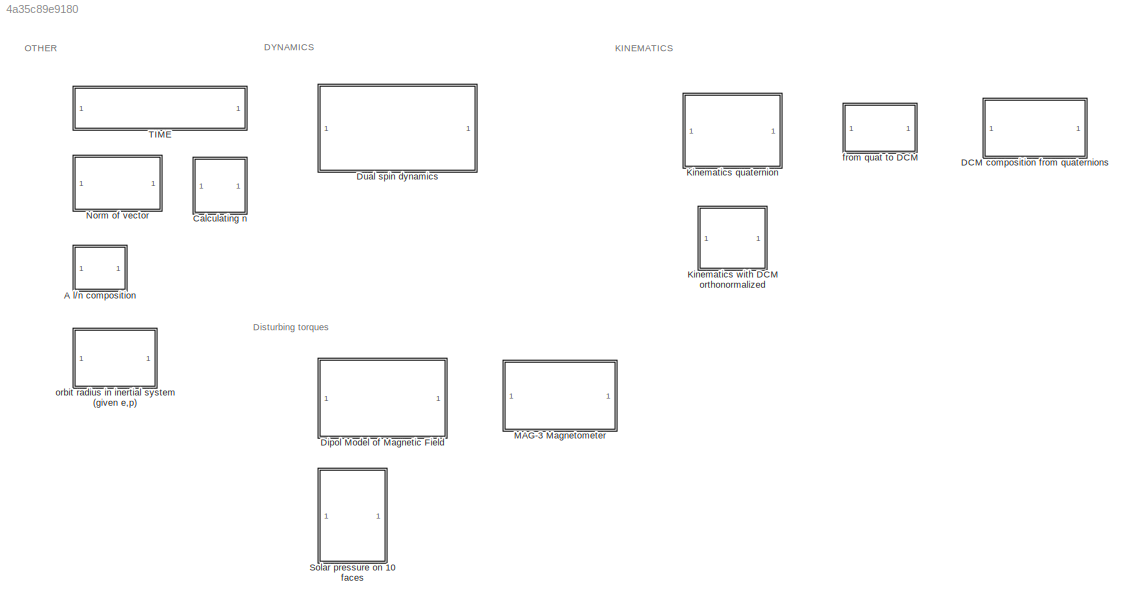
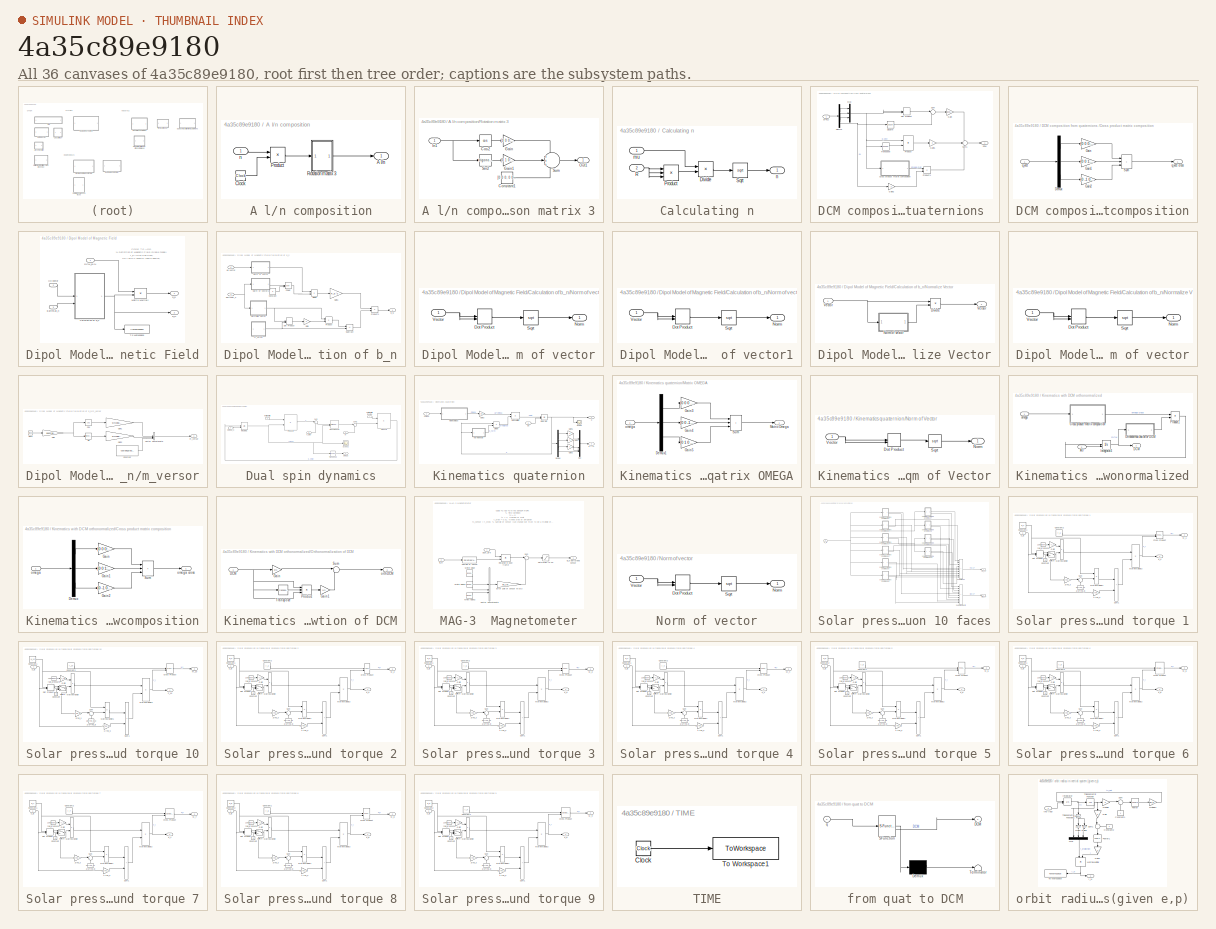
[diagram: thumbnail index - all 36 canvases of the model, root first then tree order]
MODEL slx_4a35c89e9180
KIND model
CONFIG AbsTol = auto
CONFIG EnableMultiTasking = off
CONFIG FixedStep = auto
CONFIG MaxStep = auto
CONFIG MinStep = auto
CONFIG RelTol = 1e-3
CONFIG SampleTimeConstraint = Unconstrained
CONFIG SolverName = VariableStepAuto
CONFIG StartTime = 0.0
CONFIG StopTime = 10.0
BLOCK [SubSystem] A l//n composition
  AncestorBlock = LibrarySAD5/A l//n composition
BLOCK [Outport] A l//n composition/A l//n
BLOCK [Clock] A l//n composition/Clock
BLOCK [Product] A l//n composition/Product
BLOCK [SubSystem] A l//n composition/Rotation matrix 3
BLOCK [Constant] A l//n composition/Rotation matrix 3/Constant1
  Value = [0 0 0; 0 0 0; 0 0 1]
BLOCK [Trigonometry] A l//n composition/Rotation matrix 3/Cos2
  Operator = cos
BLOCK [Gain] A l//n composition/Rotation matrix 3/Gain
  Gain = [1 0 0; 0 1 0; 0 0 0]
BLOCK [Gain] A l//n composition/Rotation matrix 3/Gain1
  Gain = [0 1 0; -1 0 0; 0 0 0]
BLOCK [Inport] A l//n composition/Rotation matrix 3/In1
BLOCK [Outport] A l//n composition/Rotation matrix 3/Out1
BLOCK [Trigonometry] A l//n composition/Rotation matrix 3/Sin2
BLOCK [Sum] A l//n composition/Rotation matrix 3/Sum
  Inputs = +++
BLOCK [Inport] A l//n composition/n
BLOCK [SubSystem] Calculating n
  AncestorBlock = LibrarySAD5/Calculating n
BLOCK [Product] Calculating n/Divide
  Inputs = */
BLOCK [Product] Calculating n/Product
  Inputs = 3
BLOCK [Inport] Calculating n/R
  Port = 2
BLOCK [Sqrt] Calculating n/Sqrt
BLOCK [Inport] Calculating n/mu
BLOCK [Outport] Calculating n/n
BLOCK [SubSystem] DCM composition from quaternions 
  AncestorBlock = LibrarySAD5/DCM composition from quaternions
BLOCK [SubSystem] DCM composition from quaternions /Cross product matrix composition
BLOCK [Demux] DCM composition from quaternions /Cross product matrix composition/Demux
  Outputs = 3
BLOCK [Gain] DCM composition from quaternions /Cross product matrix composition/Gain
  Gain = [0 0 0; 0 0 -1; 0 1 0]
BLOCK [Gain] DCM composition from quaternions /Cross product matrix composition/Gain1
  Gain = [0 0 1; 0 0 0; -1 0 0]
BLOCK [Gain] DCM composition from quaternions /Cross product matrix composition/Gain2
  Gain = [0 -1 0; 1 0 0; 0 0 0]
BLOCK [Sum] DCM composition from quaternions /Cross product matrix composition/Sum
  IconShape = rectangular
  Inputs = +++
BLOCK [Inport] DCM composition from quaternions /Cross product matrix composition/q_vect
BLOCK [Outport] DCM composition from quaternions /Cross product matrix composition/q_vect cross
BLOCK [Outport] DCM composition from quaternions /DCM
BLOCK [Demux] DCM composition from quaternions /Demux
BLOCK [DotProduct] DCM composition from quaternions /Dot Product
  OutDataTypeStr = Inherit: Inherit via internal rule
BLOCK [Gain] DCM composition from quaternions /Gain
  Gain = [1 0 0; 0 1 0; 0 0 1]
BLOCK [Gain] DCM composition from quaternions /Gain1
  Gain = 2
BLOCK [Gain] DCM composition from quaternions /Gain2
  Gain = -2
BLOCK [Mux] DCM composition from quaternions /Mux
  DisplayOption = bar
  Inputs = 3
BLOCK [Product] DCM composition from quaternions /Product
  Multiplication = Matrix(*)
BLOCK [Product] DCM composition from quaternions /Product1
BLOCK [Math] DCM composition from quaternions /Square
  Operator = square
BLOCK [Sum] DCM composition from quaternions /Sum
  Inputs = |-+
BLOCK [Sum] DCM composition from quaternions /Sum1
  Inputs = +++
BLOCK [Math] DCM composition from quaternions /Transpose
  Operator = transpose
BLOCK [Inport] DCM composition from quaternions /q(4x1)
BLOCK [SubSystem] Dipol Model of Magnetic Field
BLOCK [SubSystem] Dipol Model of Magnetic Field/Calculation of b_n
BLOCK [Constant] Dipol Model of Magnetic Field/Calculation of b_n/Constant
  Value = 3
BLOCK [Product] Dipol Model of Magnetic Field/Calculation of b_n/Divide
  Inputs = */
BLOCK [DotProduct] Dipol Model of Magnetic Field/Calculation of b_n/Dot Product
  OutDataTypeStr = Inherit: Inherit via internal rule
BLOCK [Inport] Dipol Model of Magnetic Field/Calculation of b_n/EarthSat_n
  Port = 2
BLOCK [Gain] Dipol Model of Magnetic Field/Calculation of b_n/Gain
  Gain = 3
BLOCK [Gain] Dipol Model of Magnetic Field/Calculation of b_n/Gain1
  Gain = R_E^3
BLOCK [Inport] Dipol Model of Magnetic Field/Calculation of b_n/H0 vector
BLOCK [SubSystem] Dipol Model of Magnetic Field/Calculation of b_n/Norm of vector
  AncestorBlock = LibrarySAD5/Normalize Vector1
BLOCK [DotProduct] Dipol Model of Magnetic Field/Calculation of b_n/Norm of vector/Dot Product
  OutDataTypeStr = Inherit: Inherit via internal rule
BLOCK [Outport] Dipol Model of Magnetic Field/Calculation of b_n/Norm of vector/Norm
BLOCK [Sqrt] Dipol Model of Magnetic Field/Calculation of b_n/Norm of vector/Sqrt
BLOCK [Inport] Dipol Model of Magnetic Field/Calculation of b_n/Norm of vector/Vector
BLOCK [SubSystem] Dipol Model of Magnetic Field/Calculation of b_n/Norm of vector1
  AncestorBlock = LibrarySAD5/Normalize Vector1
BLOCK [DotProduct] Dipol Model of Magnetic Field/Calculation of b_n/Norm of vector1/Dot Product
  OutDataTypeStr = Inherit: Inherit via internal rule
BLOCK [Outport] Dipol Model of Magnetic Field/Calculation of b_n/Norm of vector1/Norm
BLOCK [Sqrt] Dipol Model of Magnetic Field/Calculation of b_n/Norm of vector1/Sqrt
BLOCK [Inport] Dipol Model of Magnetic Field/Calculation of b_n/Norm of vector1/Vector
BLOCK [SubSystem] Dipol Model of Magnetic Field/Calculation of b_n/Normalize Vector
BLOCK [Product] Dipol Model of Magnetic Field/Calculation of b_n/Normalize Vector/Divide
  Inputs = */
BLOCK [SubSystem] Dipol Model of Magnetic Field/Calculation of b_n/Normalize Vector/Norm of vector
  AncestorBlock = LibrarySAD5/Normalize Vector1
BLOCK [DotProduct] Dipol Model of Magnetic Field/Calculation of b_n/Normalize Vector/Norm of vector/Dot Product
  OutDataTypeStr = Inherit: Inherit via internal rule
BLOCK [Outport] Dipol Model of Magnetic Field/Calculation of b_n/Normalize Vector/Norm of vector/Norm
BLOCK [Sqrt] Dipol Model of Magnetic Field/Calculation of b_n/Normalize Vector/Norm of vector/Sqrt
BLOCK [Inport] Dipol Model of Magnetic Field/Calculation of b_n/Normalize Vector/Norm of vector/Vector
BLOCK [Inport] Dipol Model of Magnetic Field/Calculation of b_n/Normalize Vector/Vector
BLOCK [Outport] Dipol Model of Magnetic Field/Calculation of b_n/Normalize Vector/Versor
BLOCK [Math] Dipol Model of Magnetic Field/Calculation of b_n/Power
  Operator = pow
BLOCK [Product] Dipol Model of Magnetic Field/Calculation of b_n/Product
BLOCK [Product] Dipol Model of Magnetic Field/Calculation of b_n/Product1
BLOCK [Sum] Dipol Model of Magnetic Field/Calculation of b_n/Subtract
  IconShape = rectangular
  Inputs = +-
BLOCK [Outport] Dipol Model of Magnetic Field/Calculation of b_n/b_N
BLOCK [SubSystem] Dipol Model of Magnetic Field/Calculation of b_n/m_versor
BLOCK [Clock] Dipol Model of Magnetic Field/Calculation of b_n/m_versor/Clock
BLOCK [Constant] Dipol Model of Magnetic Field/Calculation of b_n/m_versor/Constant
  Value = cos(deg2rad(11.5))
BLOCK [Trigonometry] Dipol Model of Magnetic Field/Calculation of b_n/m_versor/Cos
  Operator = cos
BLOCK [Gain] Dipol Model of Magnetic Field/Calculation of b_n/m_versor/Gain
  Gain = deg2rad(w_E)
BLOCK [Gain] Dipol Model of Magnetic Field/Calculation of b_n/m_versor/Gain1
  Gain = sin(deg2rad(11.5))
BLOCK [Gain] Dipol Model of Magnetic Field/Calculation of b_n/m_versor/Gain2
  Gain = sin(deg2rad(11.5))
BLOCK [Trigonometry] Dipol Model of Magnetic Field/Calculation of b_n/m_versor/Sin
BLOCK [Concatenate] Dipol Model of Magnetic Field/Calculation of b_n/m_versor/Vector Concatenate
  NumInputs = 3
BLOCK [Outport] Dipol Model of Magnetic Field/Calculation of b_n/m_versor/m_versor
BLOCK [Inport] Dipol Model of Magnetic Field/DCM_B//N
BLOCK [Inport] Dipol Model of Magnetic Field/EarthSat_n
  Port = 3
BLOCK [Inport] Dipol Model of Magnetic Field/H0 vector
  Port = 2
BLOCK [Product] Dipol Model of Magnetic Field/Matrix Multiply
  Multiplication = Matrix(*)
BLOCK [ToWorkspace] Dipol Model of Magnetic Field/To Workspace
  FixptAsFi = on
  MaxDataPoints = inf
  SampleTime = -1
  VariableName = bn
BLOCK [Outport] Dipol Model of Magnetic Field/b_N
  Port = 2
BLOCK [Outport] Dipol Model of Magnetic Field/b_b
BLOCK [SubSystem] Dual spin dynamics
  AncestorBlock = LibrarySAD5/Dual spin dynamics
BLOCK [Reference] Dual spin dynamics/Cross Product1  REF=matrix_library/Cross Product
  LibrarySourceBlock = simulink/Matrix\nOperations/Cross Product
  SourceBlock = matrix_library/Cross Product
  SourceType = CrossProduct
BLOCK [Inport] Dual spin dynamics/Inertia matrix
  Port = 2
BLOCK [Inport] Dual spin dynamics/Inertia matrix inverse
BLOCK [Integrator] Dual spin dynamics/Integrator1
  InitialConditionSource = external
BLOCK [Inport] Dual spin dynamics/M
  Port = 5
BLOCK [Outport] Dual spin dynamics/Omega
BLOCK [Inport] Dual spin dynamics/Omega_0
  Port = 3
BLOCK [Product] Dual spin dynamics/Product2
  Multiplication = Matrix(*)
BLOCK [Product] Dual spin dynamics/Product3
  Multiplication = Matrix(*)
BLOCK [Scope] Dual spin dynamics/Scope2
  Floating = off
  NumInputPorts = 1
  ScopeSpecificationString = Simulink.scopes.TimeScopeBlockCfg('CurrentConfiguration', extmgr.ConfigurationSet(extmgr.Configuration('Core','General UI',true),extmgr.Configuration('Core','Source UI',true),extmgr.Configuration('Sources','WiredSimulink',true,'DataLoggingVariableName','ScopeData1'),extmgr.Configuration('Visuals','Time Domain',true,'SerializedDisplays',{struct('MinYLimReal','-0.19283','MaxYLimReal','0.27408','YLab...<+1426ch>
BLOCK [Sum] Dual spin dynamics/Sum
  Inputs = |++
BLOCK [Sum] Dual spin dynamics/Sum1
  Inputs = |++
BLOCK [Math] Dual spin dynamics/Transpose
  Operator = transpose
BLOCK [Inport] Dual spin dynamics/h_rotor
  Port = 4
BLOCK [SubSystem] Kinematics quaternion
  AncestorBlock = LibrarySAD5/Kinematics quaternion
BLOCK [Demux] Kinematics quaternion/Demux
BLOCK [Product] Kinematics quaternion/Divide
  Inputs = */
BLOCK [Gain] Kinematics quaternion/Gain1
  Gain = -1
BLOCK [Gain] Kinematics quaternion/Gain2
  Gain = -1
BLOCK [Gain] Kinematics quaternion/Gain3
  Gain = 1/2
BLOCK [Gain] Kinematics quaternion/Gain5
  Gain = -1
BLOCK [Integrator] Kinematics quaternion/Integrator
  InitialConditionSource = external
BLOCK [Product] Kinematics quaternion/Matrix Multiply
  Multiplication = Matrix(*)
BLOCK [SubSystem] Kinematics quaternion/Matrix OMEGA
BLOCK [Demux] Kinematics quaternion/Matrix OMEGA/Demux1
  Outputs = 3
BLOCK [Gain] Kinematics quaternion/Matrix OMEGA/Gain3
  Gain = [0 0 0 1; 0 0 1 0; 0 -1 0 0; -1 0 0 0]
BLOCK [Gain] Kinematics quaternion/Matrix OMEGA/Gain4
  Gain = [0 0 -1 0; 0 0 0 1; 1 0 0 0; 0 -1 0 0]
BLOCK [Gain] Kinematics quaternion/Matrix OMEGA/Gain5
  Gain = [0 1 0 0; -1 0 0 0; 0 0 0 1; 0 0 -1 0]
BLOCK [Outport] Kinematics quaternion/Matrix OMEGA/Matrix Omega
BLOCK [Sum] Kinematics quaternion/Matrix OMEGA/Sum
  IconShape = rectangular
  Inputs = +++
BLOCK [Inport] Kinematics quaternion/Matrix OMEGA/omega
BLOCK [Mux] Kinematics quaternion/Mux
  DisplayOption = bar
BLOCK [SubSystem] Kinematics quaternion/Norm of Vector
BLOCK [DotProduct] Kinematics quaternion/Norm of Vector/Dot Product
  OutDataTypeStr = Inherit: Inherit via internal rule
BLOCK [Outport] Kinematics quaternion/Norm of Vector/Norm
BLOCK [Sqrt] Kinematics quaternion/Norm of Vector/Sqrt
BLOCK [Inport] Kinematics quaternion/Norm of Vector/Vector
BLOCK [Scope] Kinematics quaternion/Scope
  Floating = off
  NumInputPorts = 1
  ScopeSpecificationString = Simulink.scopes.TimeScopeBlockCfg('CurrentConfiguration', extmgr.ConfigurationSet(extmgr.Configuration('Core','General UI',true),extmgr.Configuration('Core','Source UI',true),extmgr.Configuration('Sources','WiredSimulink',true,'DataLoggingVariableName','ScopeData1'),extmgr.Configuration('Visuals','Time Domain',true),extmgr.Configuration('Tools','Plot Navigation',true),extmgr.Configuration('Tools',...<+40ch>
BLOCK [Inport] Kinematics quaternion/omega
BLOCK [Outport] Kinematics quaternion/q
BLOCK [Inport] Kinematics quaternion/q0
  Port = 2
BLOCK [Outport] Kinematics quaternion/q^(-1)
  Port = 2
BLOCK [SubSystem] Kinematics with DCM orthonormalized
  AncestorBlock = LibrarySAD5/Kinematics with DCM orthonormalized
BLOCK [Inport] Kinematics with DCM orthonormalized/A0
  Port = 2
BLOCK [SubSystem] Kinematics with DCM orthonormalized/Cross product matrix composition
BLOCK [Demux] Kinematics with DCM orthonormalized/Cross product matrix composition/Demux
  Outputs = 3
BLOCK [Gain] Kinematics with DCM orthonormalized/Cross product matrix composition/Gain
  Gain = [0 0 0; 0 0 -1; 0 1 0]
BLOCK [Gain] Kinematics with DCM orthonormalized/Cross product matrix composition/Gain1
  Gain = [0 0 1; 0 0 0; -1 0 0]
BLOCK [Gain] Kinematics with DCM orthonormalized/Cross product matrix composition/Gain2
  Gain = [0 -1 0; 1 0 0; 0 0 0]
BLOCK [Sum] Kinematics with DCM orthonormalized/Cross product matrix composition/Sum
  IconShape = rectangular
  Inputs = +++
BLOCK [Inport] Kinematics with DCM orthonormalized/Cross product matrix composition/omega
BLOCK [Outport] Kinematics with DCM orthonormalized/Cross product matrix composition/omega cross
BLOCK [Outport] Kinematics with DCM orthonormalized/DCM
BLOCK [Integrator] Kinematics with DCM orthonormalized/Integrator3
  InitialConditionSource = external
  NameLocation = left
BLOCK [SubSystem] Kinematics with DCM orthonormalized/Orthonormalization of DCM
BLOCK [Inport] Kinematics with DCM orthonormalized/Orthonormalization of DCM/DCM
BLOCK [Gain] Kinematics with DCM orthonormalized/Orthonormalization of DCM/Gain
  Gain = 3/2
BLOCK [Gain] Kinematics with DCM orthonormalized/Orthonormalization of DCM/Gain1
  Gain = 1/2
BLOCK [Product] Kinematics with DCM orthonormalized/Orthonormalization of DCM/Product
  Inputs = 3
  Multiplication = Matrix(*)
BLOCK [Sum] Kinematics with DCM orthonormalized/Orthonormalization of DCM/Sum
  Inputs = |+-
BLOCK [Math] Kinematics with DCM orthonormalized/Orthonormalization of DCM/Transpose
  Operator = transpose
BLOCK [Outport] Kinematics with DCM orthonormalized/Orthonormalization of DCM/orthDCM
BLOCK [Product] Kinematics with DCM orthonormalized/Product1
  Multiplication = Matrix(*)
BLOCK [Inport] Kinematics with DCM orthonormalized/omega
BLOCK [SubSystem] MAG-3  Magnetometer
BLOCK [Inport] MAG-3  Magnetometer/B_N
  Port = 2
BLOCK [Outport] MAG-3  Magnetometer/B_b perturbed sensor
BLOCK [Inport] MAG-3  Magnetometer/DCM_B//N
BLOCK [Gain] MAG-3  Magnetometer/Error gain of sensor MAG-3
  Gain = inc_tot*FS
BLOCK [Product] MAG-3  Magnetometer/Rotation in body frame
  Multiplication = Matrix(*)
BLOCK [ZeroOrderHold] MAG-3  Magnetometer/Sample of sensor
  SampleTime = ts_sensor
BLOCK [Saturate] MAG-3  Magnetometer/Saturation to FS
  LowerLimit = -FS
  UpperLimit = FS
BLOCK [Sum] MAG-3  Magnetometer/Sum
  Inputs = |++
BLOCK [Concatenate] MAG-3  Magnetometer/Vector Concatenate
  NumInputs = 3
BLOCK [RandomNumber] MAG-3  Magnetometer/White Noise
  DisableCoverage = on
  SampleTime = ts_sensor
  Seed = 1
BLOCK [RandomNumber] MAG-3  Magnetometer/White Noise1
  DisableCoverage = on
  SampleTime = ts_sensor
  Seed = 2
BLOCK [RandomNumber] MAG-3  Magnetometer/White Noise2
  DisableCoverage = on
  SampleTime = ts_sensor
  Seed = 3
BLOCK [SubSystem] Norm of vector
  AncestorBlock = LibrarySAD5/Normalize Vector1
BLOCK [DotProduct] Norm of vector/Dot Product
  OutDataTypeStr = Inherit: Inherit via internal rule
BLOCK [Outport] Norm of vector/Norm
BLOCK [Sqrt] Norm of vector/Sqrt
BLOCK [Inport] Norm of vector/Vector
BLOCK [SubSystem] Solar pressure on 10 faces
BLOCK [Outport] Solar pressure on 10 faces/Ftot_SP
BLOCK [Outport] Solar pressure on 10 faces/Mtot_SP
  Port = 2
BLOCK [Inport] Solar pressure on 10 faces/S_B
BLOCK [Sum] Solar pressure on 10 faces/Sum of forces
  IconShape = rectangular
  Inputs = ++++++++++
BLOCK [Sum] Solar pressure on 10 faces/Sum of moments
  IconShape = rectangular
  Inputs = ++++++++++
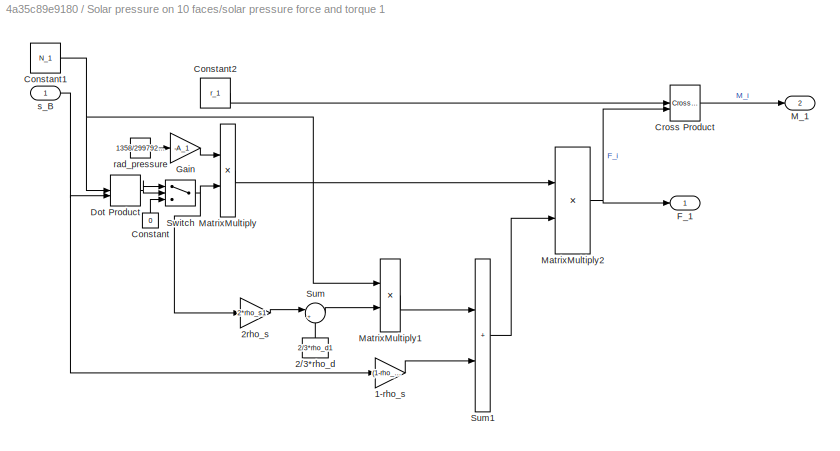
BLOCK [SubSystem] Solar pressure on 10 faces/solar pressure force and torque 1
BLOCK [Gain] Solar pressure on 10 faces/solar pressure force and torque 1/1-rho_s
  Gain = (1-rho_s1)
BLOCK [Constant] Solar pressure on 10 faces/solar pressure force and torque 1/2//3*rho_d
  NameLocation = right
  Value = 2/3*rho_d1
BLOCK [Gain] Solar pressure on 10 faces/solar pressure force and torque 1/2rho_s
  Gain = 2*rho_s1
BLOCK [Constant] Solar pressure on 10 faces/solar pressure force and torque 1/Constant
  NameLocation = right
  Value = 0
BLOCK [Constant] Solar pressure on 10 faces/solar pressure force and torque 1/Constant1
  Value = N_1
BLOCK [Constant] Solar pressure on 10 faces/solar pressure force and torque 1/Constant2
  Value = r_1
BLOCK [Reference] Solar pressure on 10 faces/solar pressure force and torque 1/Cross Product  REF=matrix_library/Cross Product
  LibrarySourceBlock = simulink/Matrix\nOperations/Cross Product
  SourceBlock = matrix_library/Cross Product
  SourceType = CrossProduct
BLOCK [DotProduct] Solar pressure on 10 faces/solar pressure force and torque 1/Dot Product
  OutDataTypeStr = Inherit: Inherit via internal rule
BLOCK [Outport] Solar pressure on 10 faces/solar pressure force and torque 1/F_1
BLOCK [Gain] Solar pressure on 10 faces/solar pressure force and torque 1/Gain
  Gain = -A_1
BLOCK [Outport] Solar pressure on 10 faces/solar pressure force and torque 1/M_1
  Port = 2
BLOCK [Product] Solar pressure on 10 faces/solar pressure force and torque 1/MatrixMultiply
BLOCK [Product] Solar pressure on 10 faces/solar pressure force and torque 1/MatrixMultiply1
BLOCK [Product] Solar pressure on 10 faces/solar pressure force and torque 1/MatrixMultiply2
BLOCK [Sum] Solar pressure on 10 faces/solar pressure force and torque 1/Sum
  Inputs = |++
BLOCK [Sum] Solar pressure on 10 faces/solar pressure force and torque 1/Sum1
  IconShape = rectangular
BLOCK [Switch] Solar pressure on 10 faces/solar pressure force and torque 1/Switch
  Criteria = u2 > Threshold
  InputSameDT = off
  SaturateOnIntegerOverflow = off
BLOCK [Constant] Solar pressure on 10 faces/solar pressure force and torque 1/rad_pressure
  Value = 1358/299792458
BLOCK [Inport] Solar pressure on 10 faces/solar pressure force and torque 1/s_B
BLOCK [SubSystem] Solar pressure on 10 faces/solar pressure force and torque 10
BLOCK [Gain] Solar pressure on 10 faces/solar pressure force and torque 10/1-rho_s
  Gain = 1-rho_s10
BLOCK [Constant] Solar pressure on 10 faces/solar pressure force and torque 10/2//3*rho_d
  NameLocation = right
  Value = 2/3*rho_d10
BLOCK [Gain] Solar pressure on 10 faces/solar pressure force and torque 10/2rho_s
  Gain = 2*rho_s10
BLOCK [Constant] Solar pressure on 10 faces/solar pressure force and torque 10/Constant
  NameLocation = right
  Value = 0
BLOCK [Constant] Solar pressure on 10 faces/solar pressure force and torque 10/Constant1
  Value = N_10
BLOCK [Constant] Solar pressure on 10 faces/solar pressure force and torque 10/Constant2
  Value = r_10
BLOCK [Reference] Solar pressure on 10 faces/solar pressure force and torque 10/Cross Product  REF=matrix_library/Cross Product
  LibrarySourceBlock = simulink/Matrix\nOperations/Cross Product
  SourceBlock = matrix_library/Cross Product
  SourceType = CrossProduct
BLOCK [DotProduct] Solar pressure on 10 faces/solar pressure force and torque 10/Dot Product
  OutDataTypeStr = Inherit: Inherit via internal rule
BLOCK [Outport] Solar pressure on 10 faces/solar pressure force and torque 10/F_10
BLOCK [Gain] Solar pressure on 10 faces/solar pressure force and torque 10/Gain
  Gain = -A_10
BLOCK [Outport] Solar pressure on 10 faces/solar pressure force and torque 10/M_10
  Port = 2
BLOCK [Product] Solar pressure on 10 faces/solar pressure force and torque 10/MatrixMultiply
BLOCK [Product] Solar pressure on 10 faces/solar pressure force and torque 10/MatrixMultiply1
BLOCK [Product] Solar pressure on 10 faces/solar pressure force and torque 10/MatrixMultiply2
BLOCK [Sum] Solar pressure on 10 faces/solar pressure force and torque 10/Sum
  Inputs = |++
BLOCK [Sum] Solar pressure on 10 faces/solar pressure force and torque 10/Sum1
  IconShape = rectangular
BLOCK [Switch] Solar pressure on 10 faces/solar pressure force and torque 10/Switch
  Criteria = u2 > Threshold
  InputSameDT = off
  SaturateOnIntegerOverflow = off
BLOCK [Constant] Solar pressure on 10 faces/solar pressure force and torque 10/rad_pressure
  Value = 1358/299792458
BLOCK [Inport] Solar pressure on 10 faces/solar pressure force and torque 10/s_B
BLOCK [SubSystem] Solar pressure on 10 faces/solar pressure force and torque 2
BLOCK [Gain] Solar pressure on 10 faces/solar pressure force and torque 2/1-rho_s
  Gain = 1-rho_s2
BLOCK [Constant] Solar pressure on 10 faces/solar pressure force and torque 2/2//3*rho_d
  NameLocation = right
  Value = 2/3*rho_d2
BLOCK [Gain] Solar pressure on 10 faces/solar pressure force and torque 2/2rho_s
  Gain = 2*rho_s2
BLOCK [Constant] Solar pressure on 10 faces/solar pressure force and torque 2/Constant
  NameLocation = right
  Value = 0
BLOCK [Constant] Solar pressure on 10 faces/solar pressure force and torque 2/Constant1
  Value = N_2
BLOCK [Constant] Solar pressure on 10 faces/solar pressure force and torque 2/Constant2
  Value = r_2
BLOCK [Reference] Solar pressure on 10 faces/solar pressure force and torque 2/Cross Product  REF=matrix_library/Cross Product
  LibrarySourceBlock = simulink/Matrix\nOperations/Cross Product
  SourceBlock = matrix_library/Cross Product
  SourceType = CrossProduct
BLOCK [DotProduct] Solar pressure on 10 faces/solar pressure force and torque 2/Dot Product
  OutDataTypeStr = Inherit: Inherit via internal rule
BLOCK [Outport] Solar pressure on 10 faces/solar pressure force and torque 2/F_2
BLOCK [Gain] Solar pressure on 10 faces/solar pressure force and torque 2/Gain
  Gain = -A_2
BLOCK [Outport] Solar pressure on 10 faces/solar pressure force and torque 2/M_2
  Port = 2
BLOCK [Product] Solar pressure on 10 faces/solar pressure force and torque 2/MatrixMultiply
BLOCK [Product] Solar pressure on 10 faces/solar pressure force and torque 2/MatrixMultiply1
BLOCK [Product] Solar pressure on 10 faces/solar pressure force and torque 2/MatrixMultiply2
BLOCK [Sum] Solar pressure on 10 faces/solar pressure force and torque 2/Sum
  Inputs = |++
BLOCK [Sum] Solar pressure on 10 faces/solar pressure force and torque 2/Sum1
  IconShape = rectangular
BLOCK [Switch] Solar pressure on 10 faces/solar pressure force and torque 2/Switch
  Criteria = u2 > Threshold
  InputSameDT = off
  SaturateOnIntegerOverflow = off
BLOCK [Constant] Solar pressure on 10 faces/solar pressure force and torque 2/rad_pressure
  Value = 1358/299792458
BLOCK [Inport] Solar pressure on 10 faces/solar pressure force and torque 2/s_B
BLOCK [SubSystem] Solar pressure on 10 faces/solar pressure force and torque 3
BLOCK [Gain] Solar pressure on 10 faces/solar pressure force and torque 3/1-rho_s
  Gain = 1-rho_s3
BLOCK [Constant] Solar pressure on 10 faces/solar pressure force and torque 3/2//3*rho_d
  NameLocation = right
  Value = 2/3*rho_d3
BLOCK [Gain] Solar pressure on 10 faces/solar pressure force and torque 3/2rho_s
  Gain = 2*rho_s3
BLOCK [Constant] Solar pressure on 10 faces/solar pressure force and torque 3/Constant
  NameLocation = right
  Value = 0
BLOCK [Constant] Solar pressure on 10 faces/solar pressure force and torque 3/Constant1
  Value = N_3
BLOCK [Constant] Solar pressure on 10 faces/solar pressure force and torque 3/Constant2
  Value = r_3
BLOCK [Reference] Solar pressure on 10 faces/solar pressure force and torque 3/Cross Product  REF=matrix_library/Cross Product
  LibrarySourceBlock = simulink/Matrix\nOperations/Cross Product
  SourceBlock = matrix_library/Cross Product
  SourceType = CrossProduct
BLOCK [DotProduct] Solar pressure on 10 faces/solar pressure force and torque 3/Dot Product
  OutDataTypeStr = Inherit: Inherit via internal rule
BLOCK [Outport] Solar pressure on 10 faces/solar pressure force and torque 3/F_3
BLOCK [Gain] Solar pressure on 10 faces/solar pressure force and torque 3/Gain
  Gain = -A_3
BLOCK [Outport] Solar pressure on 10 faces/solar pressure force and torque 3/M_3
  Port = 2
BLOCK [Product] Solar pressure on 10 faces/solar pressure force and torque 3/MatrixMultiply
BLOCK [Product] Solar pressure on 10 faces/solar pressure force and torque 3/MatrixMultiply1
BLOCK [Product] Solar pressure on 10 faces/solar pressure force and torque 3/MatrixMultiply2
BLOCK [Sum] Solar pressure on 10 faces/solar pressure force and torque 3/Sum
  Inputs = |++
BLOCK [Sum] Solar pressure on 10 faces/solar pressure force and torque 3/Sum1
  IconShape = rectangular
BLOCK [Switch] Solar pressure on 10 faces/solar pressure force and torque 3/Switch
  Criteria = u2 > Threshold
  InputSameDT = off
  SaturateOnIntegerOverflow = off
BLOCK [Constant] Solar pressure on 10 faces/solar pressure force and torque 3/rad_pressure
  Value = 1358/299792458
BLOCK [Inport] Solar pressure on 10 faces/solar pressure force and torque 3/s_B
BLOCK [SubSystem] Solar pressure on 10 faces/solar pressure force and torque 4
BLOCK [Gain] Solar pressure on 10 faces/solar pressure force and torque 4/1-rho_s
  Gain = 1-rho_s4
BLOCK [Constant] Solar pressure on 10 faces/solar pressure force and torque 4/2//3*rho_d
  NameLocation = right
  Value = 2/3*rho_d4
BLOCK [Gain] Solar pressure on 10 faces/solar pressure force and torque 4/2rho_s
  Gain = 2*rho_s4
BLOCK [Constant] Solar pressure on 10 faces/solar pressure force and torque 4/Constant
  NameLocation = right
  Value = 0
BLOCK [Constant] Solar pressure on 10 faces/solar pressure force and torque 4/Constant1
  Value = N_4
BLOCK [Constant] Solar pressure on 10 faces/solar pressure force and torque 4/Constant2
  Value = r_4
BLOCK [Reference] Solar pressure on 10 faces/solar pressure force and torque 4/Cross Product  REF=matrix_library/Cross Product
  LibrarySourceBlock = simulink/Matrix\nOperations/Cross Product
  SourceBlock = matrix_library/Cross Product
  SourceType = CrossProduct
BLOCK [DotProduct] Solar pressure on 10 faces/solar pressure force and torque 4/Dot Product
  OutDataTypeStr = Inherit: Inherit via internal rule
BLOCK [Outport] Solar pressure on 10 faces/solar pressure force and torque 4/F_4
BLOCK [Gain] Solar pressure on 10 faces/solar pressure force and torque 4/Gain
  Gain = -A_4
BLOCK [Outport] Solar pressure on 10 faces/solar pressure force and torque 4/M_4
  Port = 2
BLOCK [Product] Solar pressure on 10 faces/solar pressure force and torque 4/MatrixMultiply
BLOCK [Product] Solar pressure on 10 faces/solar pressure force and torque 4/MatrixMultiply1
BLOCK [Product] Solar pressure on 10 faces/solar pressure force and torque 4/MatrixMultiply2
BLOCK [Sum] Solar pressure on 10 faces/solar pressure force and torque 4/Sum
  Inputs = |++
BLOCK [Sum] Solar pressure on 10 faces/solar pressure force and torque 4/Sum1
  IconShape = rectangular
BLOCK [Switch] Solar pressure on 10 faces/solar pressure force and torque 4/Switch
  Criteria = u2 > Threshold
  InputSameDT = off
  SaturateOnIntegerOverflow = off
BLOCK [Constant] Solar pressure on 10 faces/solar pressure force and torque 4/rad_pressure
  Value = 1358/299792458
BLOCK [Inport] Solar pressure on 10 faces/solar pressure force and torque 4/s_B
BLOCK [SubSystem] Solar pressure on 10 faces/solar pressure force and torque 5
BLOCK [Gain] Solar pressure on 10 faces/solar pressure force and torque 5/1-rho_s
  Gain = 1-rho_s5
BLOCK [Constant] Solar pressure on 10 faces/solar pressure force and torque 5/2//3*rho_d
  NameLocation = right
  Value = 2/3*rho_d5
BLOCK [Gain] Solar pressure on 10 faces/solar pressure force and torque 5/2rho_s
  Gain = 2*rho_s5
BLOCK [Constant] Solar pressure on 10 faces/solar pressure force and torque 5/Constant
  NameLocation = right
  Value = 0
BLOCK [Constant] Solar pressure on 10 faces/solar pressure force and torque 5/Constant1
  Value = r_5
BLOCK [Constant] Solar pressure on 10 faces/solar pressure force and torque 5/Constant2
  Value = N_5
BLOCK [Reference] Solar pressure on 10 faces/solar pressure force and torque 5/Cross Product  REF=matrix_library/Cross Product
  LibrarySourceBlock = simulink/Matrix\nOperations/Cross Product
  SourceBlock = matrix_library/Cross Product
  SourceType = CrossProduct
BLOCK [DotProduct] Solar pressure on 10 faces/solar pressure force and torque 5/Dot Product
  OutDataTypeStr = Inherit: Inherit via internal rule
BLOCK [Outport] Solar pressure on 10 faces/solar pressure force and torque 5/F_5
BLOCK [Gain] Solar pressure on 10 faces/solar pressure force and torque 5/Gain
  Gain = -A_5
BLOCK [Outport] Solar pressure on 10 faces/solar pressure force and torque 5/M_5
  Port = 2
BLOCK [Product] Solar pressure on 10 faces/solar pressure force and torque 5/MatrixMultiply
BLOCK [Product] Solar pressure on 10 faces/solar pressure force and torque 5/MatrixMultiply1
BLOCK [Product] Solar pressure on 10 faces/solar pressure force and torque 5/MatrixMultiply2
BLOCK [Sum] Solar pressure on 10 faces/solar pressure force and torque 5/Sum
  Inputs = |++
BLOCK [Sum] Solar pressure on 10 faces/solar pressure force and torque 5/Sum1
  IconShape = rectangular
BLOCK [Switch] Solar pressure on 10 faces/solar pressure force and torque 5/Switch
  Criteria = u2 > Threshold
  InputSameDT = off
  SaturateOnIntegerOverflow = off
BLOCK [Constant] Solar pressure on 10 faces/solar pressure force and torque 5/rad_pressure
  Value = 1358/299792458
BLOCK [Inport] Solar pressure on 10 faces/solar pressure force and torque 5/s_B
BLOCK [SubSystem] Solar pressure on 10 faces/solar pressure force and torque 6
BLOCK [Gain] Solar pressure on 10 faces/solar pressure force and torque 6/1-rho_s
  Gain = 1-rho_s6
BLOCK [Constant] Solar pressure on 10 faces/solar pressure force and torque 6/2//3*rho_d
  NameLocation = right
  Value = 2/3*rho_d6
BLOCK [Gain] Solar pressure on 10 faces/solar pressure force and torque 6/2rho_s
  Gain = 2*rho_s6
BLOCK [Constant] Solar pressure on 10 faces/solar pressure force and torque 6/Constant
  NameLocation = right
  Value = 0
BLOCK [Constant] Solar pressure on 10 faces/solar pressure force and torque 6/Constant1
  Value = N_6
BLOCK [Constant] Solar pressure on 10 faces/solar pressure force and torque 6/Constant2
  Value = r_6
BLOCK [Reference] Solar pressure on 10 faces/solar pressure force and torque 6/Cross Product  REF=matrix_library/Cross Product
  LibrarySourceBlock = simulink/Matrix\nOperations/Cross Product
  SourceBlock = matrix_library/Cross Product
  SourceType = CrossProduct
BLOCK [DotProduct] Solar pressure on 10 faces/solar pressure force and torque 6/Dot Product
  OutDataTypeStr = Inherit: Inherit via internal rule
BLOCK [Outport] Solar pressure on 10 faces/solar pressure force and torque 6/F_6
BLOCK [Gain] Solar pressure on 10 faces/solar pressure force and torque 6/Gain
  Gain = -A_6
BLOCK [Outport] Solar pressure on 10 faces/solar pressure force and torque 6/M_6
  Port = 2
BLOCK [Product] Solar pressure on 10 faces/solar pressure force and torque 6/MatrixMultiply
BLOCK [Product] Solar pressure on 10 faces/solar pressure force and torque 6/MatrixMultiply1
BLOCK [Product] Solar pressure on 10 faces/solar pressure force and torque 6/MatrixMultiply2
BLOCK [Sum] Solar pressure on 10 faces/solar pressure force and torque 6/Sum
  Inputs = |++
BLOCK [Sum] Solar pressure on 10 faces/solar pressure force and torque 6/Sum1
  IconShape = rectangular
BLOCK [Switch] Solar pressure on 10 faces/solar pressure force and torque 6/Switch
  Criteria = u2 > Threshold
  InputSameDT = off
  SaturateOnIntegerOverflow = off
BLOCK [Constant] Solar pressure on 10 faces/solar pressure force and torque 6/rad_pressure
  Value = 1358/299792458
BLOCK [Inport] Solar pressure on 10 faces/solar pressure force and torque 6/s_B
BLOCK [SubSystem] Solar pressure on 10 faces/solar pressure force and torque 7
BLOCK [Gain] Solar pressure on 10 faces/solar pressure force and torque 7/1-rho_s
  Gain = 1-rho_s7
BLOCK [Constant] Solar pressure on 10 faces/solar pressure force and torque 7/2//3*rho_d
  NameLocation = right
  Value = 2/3*rho_d7
BLOCK [Gain] Solar pressure on 10 faces/solar pressure force and torque 7/2rho_s
  Gain = 2*rho_s7
BLOCK [Constant] Solar pressure on 10 faces/solar pressure force and torque 7/Constant
  NameLocation = right
  Value = 0
BLOCK [Constant] Solar pressure on 10 faces/solar pressure force and torque 7/Constant1
  Value = N_7
BLOCK [Constant] Solar pressure on 10 faces/solar pressure force and torque 7/Constant2
  Value = r_7
BLOCK [Reference] Solar pressure on 10 faces/solar pressure force and torque 7/Cross Product  REF=matrix_library/Cross Product
  LibrarySourceBlock = simulink/Matrix\nOperations/Cross Product
  SourceBlock = matrix_library/Cross Product
  SourceType = CrossProduct
BLOCK [DotProduct] Solar pressure on 10 faces/solar pressure force and torque 7/Dot Product
  OutDataTypeStr = Inherit: Inherit via internal rule
BLOCK [Outport] Solar pressure on 10 faces/solar pressure force and torque 7/F_7
BLOCK [Gain] Solar pressure on 10 faces/solar pressure force and torque 7/Gain
  Gain = -A_7
BLOCK [Outport] Solar pressure on 10 faces/solar pressure force and torque 7/M_7
  Port = 2
BLOCK [Product] Solar pressure on 10 faces/solar pressure force and torque 7/MatrixMultiply
BLOCK [Product] Solar pressure on 10 faces/solar pressure force and torque 7/MatrixMultiply1
BLOCK [Product] Solar pressure on 10 faces/solar pressure force and torque 7/MatrixMultiply2
BLOCK [Sum] Solar pressure on 10 faces/solar pressure force and torque 7/Sum
  Inputs = |++
BLOCK [Sum] Solar pressure on 10 faces/solar pressure force and torque 7/Sum1
  IconShape = rectangular
BLOCK [Switch] Solar pressure on 10 faces/solar pressure force and torque 7/Switch
  Criteria = u2 > Threshold
  InputSameDT = off
  SaturateOnIntegerOverflow = off
BLOCK [Constant] Solar pressure on 10 faces/solar pressure force and torque 7/rad_pressure
  Value = 1358/299792458
BLOCK [Inport] Solar pressure on 10 faces/solar pressure force and torque 7/s_B
BLOCK [SubSystem] Solar pressure on 10 faces/solar pressure force and torque 8
BLOCK [Gain] Solar pressure on 10 faces/solar pressure force and torque 8/1-rho_s
  Gain = 1-rho_s8
BLOCK [Constant] Solar pressure on 10 faces/solar pressure force and torque 8/2//3*rho_d
  NameLocation = right
  Value = 2/3*rho_d8
BLOCK [Gain] Solar pressure on 10 faces/solar pressure force and torque 8/2rho_s
  Gain = 2*rho_s8
BLOCK [Constant] Solar pressure on 10 faces/solar pressure force and torque 8/Constant
  NameLocation = right
  Value = 0
BLOCK [Constant] Solar pressure on 10 faces/solar pressure force and torque 8/Constant1
  Value = r_8
BLOCK [Constant] Solar pressure on 10 faces/solar pressure force and torque 8/Constant2
  Value = N_8
BLOCK [Reference] Solar pressure on 10 faces/solar pressure force and torque 8/Cross Product  REF=matrix_library/Cross Product
  LibrarySourceBlock = simulink/Matrix\nOperations/Cross Product
  SourceBlock = matrix_library/Cross Product
  SourceType = CrossProduct
BLOCK [DotProduct] Solar pressure on 10 faces/solar pressure force and torque 8/Dot Product
  OutDataTypeStr = Inherit: Inherit via internal rule
BLOCK [Outport] Solar pressure on 10 faces/solar pressure force and torque 8/F_8
BLOCK [Gain] Solar pressure on 10 faces/solar pressure force and torque 8/Gain
  Gain = -A_8
BLOCK [Outport] Solar pressure on 10 faces/solar pressure force and torque 8/M_8
  Port = 2
BLOCK [Product] Solar pressure on 10 faces/solar pressure force and torque 8/MatrixMultiply
BLOCK [Product] Solar pressure on 10 faces/solar pressure force and torque 8/MatrixMultiply1
BLOCK [Product] Solar pressure on 10 faces/solar pressure force and torque 8/MatrixMultiply2
BLOCK [Sum] Solar pressure on 10 faces/solar pressure force and torque 8/Sum
  Inputs = |++
BLOCK [Sum] Solar pressure on 10 faces/solar pressure force and torque 8/Sum1
  IconShape = rectangular
BLOCK [Switch] Solar pressure on 10 faces/solar pressure force and torque 8/Switch
  Criteria = u2 > Threshold
  InputSameDT = off
  SaturateOnIntegerOverflow = off
BLOCK [Constant] Solar pressure on 10 faces/solar pressure force and torque 8/rad_pressure
  Value = 1358/299792458
BLOCK [Inport] Solar pressure on 10 faces/solar pressure force and torque 8/s_B
BLOCK [SubSystem] Solar pressure on 10 faces/solar pressure force and torque 9
BLOCK [Gain] Solar pressure on 10 faces/solar pressure force and torque 9/1-rho_s
  Gain = 1-rho_s9
BLOCK [Constant] Solar pressure on 10 faces/solar pressure force and torque 9/2//3*rho_d
  NameLocation = right
  Value = 2/3*rho_d9
BLOCK [Gain] Solar pressure on 10 faces/solar pressure force and torque 9/2rho_s
  Gain = 2*rho_s9
BLOCK [Constant] Solar pressure on 10 faces/solar pressure force and torque 9/Constant
  NameLocation = right
  Value = 0
BLOCK [Constant] Solar pressure on 10 faces/solar pressure force and torque 9/Constant1
  Value = r_9
BLOCK [Constant] Solar pressure on 10 faces/solar pressure force and torque 9/Constant2
  Value = N_9
BLOCK [Reference] Solar pressure on 10 faces/solar pressure force and torque 9/Cross Product  REF=matrix_library/Cross Product
  LibrarySourceBlock = simulink/Matrix\nOperations/Cross Product
  SourceBlock = matrix_library/Cross Product
  SourceType = CrossProduct
BLOCK [DotProduct] Solar pressure on 10 faces/solar pressure force and torque 9/Dot Product
  OutDataTypeStr = Inherit: Inherit via internal rule
BLOCK [Outport] Solar pressure on 10 faces/solar pressure force and torque 9/F_9
BLOCK [Gain] Solar pressure on 10 faces/solar pressure force and torque 9/Gain
  Gain = -A_9
BLOCK [Outport] Solar pressure on 10 faces/solar pressure force and torque 9/M_9
  Port = 2
BLOCK [Product] Solar pressure on 10 faces/solar pressure force and torque 9/MatrixMultiply
BLOCK [Product] Solar pressure on 10 faces/solar pressure force and torque 9/MatrixMultiply1
BLOCK [Product] Solar pressure on 10 faces/solar pressure force and torque 9/MatrixMultiply2
BLOCK [Sum] Solar pressure on 10 faces/solar pressure force and torque 9/Sum
  Inputs = |++
BLOCK [Sum] Solar pressure on 10 faces/solar pressure force and torque 9/Sum1
  IconShape = rectangular
BLOCK [Switch] Solar pressure on 10 faces/solar pressure force and torque 9/Switch
  Criteria = u2 > Threshold
  InputSameDT = off
  SaturateOnIntegerOverflow = off
BLOCK [Constant] Solar pressure on 10 faces/solar pressure force and torque 9/rad_pressure
  Value = 1358/299792458
BLOCK [Inport] Solar pressure on 10 faces/solar pressure force and torque 9/s_B
BLOCK [SubSystem] TIME
  AncestorBlock = LibrarySAD5/TIME
BLOCK [Clock] TIME/Clock
BLOCK [ToWorkspace] TIME/To Workspace1
  FixptAsFi = on
  MaxDataPoints = inf
  SampleTime = -1
  VariableName = t
BLOCK [SubSystem] from quat to DCM
  AncestorBlock = LibrarySAD5/from quat to DCM
  ErrorFcn = Stateflow.Translate.translate
  LibrarySourceBlock = simulink/User-Defined\nFunctions/MATLAB Function
  PermitHierarchicalResolution = ExplicitOnly
  SFBlockType = MATLAB Function
  TreatAsAtomicUnit = on
BLOCK [Demux] from quat to DCM/ Demux 
  Outputs = 1
BLOCK [S-Function] from quat to DCM/ SFunction 
  EnableBusSupport = on
  FunctionName = sf_sfun
  PortCounts = [1 2]
  SFcnIsStateOwnerBlock = off
  SFunctionDeploymentMode = off
  Tag = Stateflow S-Function 2
BLOCK [Terminator] from quat to DCM/ Terminator 
BLOCK [Outport] from quat to DCM/DCM
BLOCK [Inport] from quat to DCM/q
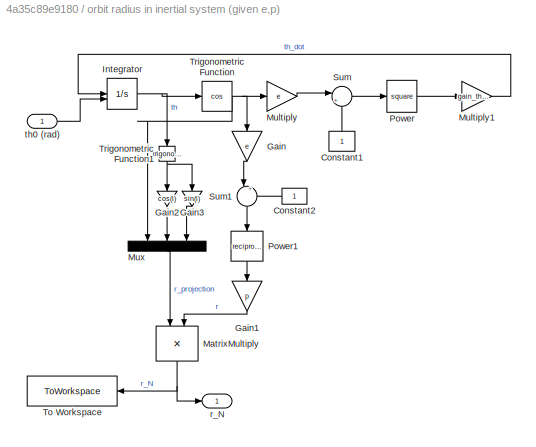
BLOCK [SubSystem] orbit radius in inertial system (given e,p)
  AncestorBlock = LibrarySAD5/orbit radius in inertial system (given e,p)
BLOCK [Constant] orbit radius in inertial system (given e,p)/Constant1
  NameLocation = right
BLOCK [Constant] orbit radius in inertial system (given e,p)/Constant2
  NameLocation = top
BLOCK [Gain] orbit radius in inertial system (given e,p)/Gain
  Gain = e
  NameLocation = left
BLOCK [Gain] orbit radius in inertial system (given e,p)/Gain1
  Gain = p
  NameLocation = left
BLOCK [Gain] orbit radius in inertial system (given e,p)/Gain2
  Gain = cos(i)
  NameLocation = left
BLOCK [Gain] orbit radius in inertial system (given e,p)/Gain3
  Gain = sin(i)
  NameLocation = left
BLOCK [Integrator] orbit radius in inertial system (given e,p)/Integrator
  InitialConditionSource = external
BLOCK [Product] orbit radius in inertial system (given e,p)/MatrixMultiply
  NameLocation = left
BLOCK [Gain] orbit radius in inertial system (given e,p)/Multiply
  Gain = e
BLOCK [Gain] orbit radius in inertial system (given e,p)/Multiply1
  Gain = gain_thdot
BLOCK [Mux] orbit radius in inertial system (given e,p)/Mux
  DisplayOption = bar
  Inputs = 3
  NameLocation = left
BLOCK [Math] orbit radius in inertial system (given e,p)/Power
  Operator = square
BLOCK [Math] orbit radius in inertial system (given e,p)/Power1
  NameLocation = left
  Operator = reciprocal
BLOCK [Sum] orbit radius in inertial system (given e,p)/Sum
  Inputs = |++
BLOCK [Sum] orbit radius in inertial system (given e,p)/Sum1
  Inputs = |++
  NameLocation = left
BLOCK [ToWorkspace] orbit radius in inertial system (given e,p)/To Workspace
  FixptAsFi = on
  MaxDataPoints = inf
  NameLocation = top
  SampleTime = -1
  VariableName = r_orb
BLOCK [Trigonometry] orbit radius in inertial system (given e,p)/Trigonometric Function
  Operator = cos
BLOCK [Trigonometry] orbit radius in inertial system (given e,p)/Trigonometric Function1
  NameLocation = left
BLOCK [Outport] orbit radius in inertial system (given e,p)/r_N
BLOCK [Inport] orbit radius in inertial system (given e,p)/th0 (rad)
ANNOTATION (root): DYNAMICS
ANNOTATION (root): Disturbing torques
ANNOTATION (root): KINEMATICS
ANNOTATION (root): OTHER
ANNOTATION Dipol Model of Magnetic Field: CODE TO ADD % Definition of Magnetic Field (Dipole model) j_b = [0.01 0.05 0.01]'; H0 = 1e-9.*[-29404.8 -1450.9 4652.5]';
ANNOTATION MAG-3  Magnetometer: CODE TO ADD TO MAKE SENSOR WORK % Time definition t0 = 0; tf = T; %Period of orbit t_step = 0.01; %fixed step of simulation ts_sensor = t_step; % Sample of sensor (can change but must to be a multiple of t_step) % MAG-3 sensor data and error FS = 500e-9; %Full scale value inc_lin = 0.15/100; % Accuracy error inc_acc = 0.75/100; % Linear error inc_tot = sqrt(inc_lin^2 + inc_acc^2); %Total error
LINE Dipol Model of Magnetic Field/Calculation of b_n/Constant:1 -> Dipol Model of Magnetic Field/Calculation of b_n/Power:2
LINE Dipol Model of Magnetic Field/Calculation of b_n/Divide:1 -> Dipol Model of Magnetic Field/Calculation of b_n/Gain1:1
LINE Dipol Model of Magnetic Field/Calculation of b_n/Dot Product:1 -> Dipol Model of Magnetic Field/Calculation of b_n/Gain:1
NET Dipol Model of Magnetic Field/Calculation of b_n/EarthSat_n:1 -> Dipol Model of Magnetic Field/Calculation of b_n/Norm of vector1:1, Dipol Model of Magnetic Field/Calculation of b_n/Normalize Vector:1
LINE Dipol Model of Magnetic Field/Calculation of b_n/Gain1:1 -> Dipol Model of Magnetic Field/Calculation of b_n/Product1:1
LINE Dipol Model of Magnetic Field/Calculation of b_n/Gain:1 -> Dipol Model of Magnetic Field/Calculation of b_n/Product:2
LINE Dipol Model of Magnetic Field/Calculation of b_n/H0 vector:1 -> Dipol Model of Magnetic Field/Calculation of b_n/Norm of vector:1
LINE Dipol Model of Magnetic Field/Calculation of b_n/Norm of vector1:1 -> Dipol Model of Magnetic Field/Calculation of b_n/Power:1
LINE Dipol Model of Magnetic Field/Calculation of b_n/Norm of vector:1 -> Dipol Model of Magnetic Field/Calculation of b_n/Divide:1
LINE Dipol Model of Magnetic Field/Calculation of b_n/Normalize Vector/Divide:1 -> Dipol Model of Magnetic Field/Calculation of b_n/Normalize Vector/Versor:1
LINE Dipol Model of Magnetic Field/Calculation of b_n/Normalize Vector/Norm of vector:1 -> Dipol Model of Magnetic Field/Calculation of b_n/Normalize Vector/Divide:2
NET Dipol Model of Magnetic Field/Calculation of b_n/Normalize Vector/Vector:1 -> Dipol Model of Magnetic Field/Calculation of b_n/Normalize Vector/Divide:1, Dipol Model of Magnetic Field/Calculation of b_n/Normalize Vector/Norm of vector:1
NET Dipol Model of Magnetic Field/Calculation of b_n/Normalize Vector:1 -> Dipol Model of Magnetic Field/Calculation of b_n/Dot Product:1, Dipol Model of Magnetic Field/Calculation of b_n/Product:1
LINE Dipol Model of Magnetic Field/Calculation of b_n/Power:1 -> Dipol Model of Magnetic Field/Calculation of b_n/Divide:2
LINE Dipol Model of Magnetic Field/Calculation of b_n/Product1:1 -> Dipol Model of Magnetic Field/Calculation of b_n/b_N:1
LINE Dipol Model of Magnetic Field/Calculation of b_n/Product:1 -> Dipol Model of Magnetic Field/Calculation of b_n/Subtract:1
LINE Dipol Model of Magnetic Field/Calculation of b_n/Subtract:1 -> Dipol Model of Magnetic Field/Calculation of b_n/Product1:2
LINE Dipol Model of Magnetic Field/Calculation of b_n/m_versor/Clock:1 -> Dipol Model of Magnetic Field/Calculation of b_n/m_versor/Gain:1
LINE Dipol Model of Magnetic Field/Calculation of b_n/m_versor/Constant:1 -> Dipol Model of Magnetic Field/Calculation of b_n/m_versor/Vector Concatenate:3
LINE Dipol Model of Magnetic Field/Calculation of b_n/m_versor/Cos:1 -> Dipol Model of Magnetic Field/Calculation of b_n/m_versor/Gain1:1
LINE Dipol Model of Magnetic Field/Calculation of b_n/m_versor/Gain1:1 -> Dipol Model of Magnetic Field/Calculation of b_n/m_versor/Vector Concatenate:1
LINE Dipol Model of Magnetic Field/Calculation of b_n/m_versor/Gain2:1 -> Dipol Model of Magnetic Field/Calculation of b_n/m_versor/Vector Concatenate:2
NET Dipol Model of Magnetic Field/Calculation of b_n/m_versor/Gain:1 -> Dipol Model of Magnetic Field/Calculation of b_n/m_versor/Cos:1, Dipol Model of Magnetic Field/Calculation of b_n/m_versor/Sin:1
LINE Dipol Model of Magnetic Field/Calculation of b_n/m_versor/Sin:1 -> Dipol Model of Magnetic Field/Calculation of b_n/m_versor/Gain2:1
LINE Dipol Model of Magnetic Field/Calculation of b_n/m_versor/Vector Concatenate:1 -> Dipol Model of Magnetic Field/Calculation of b_n/m_versor/m_versor:1
NET Dipol Model of Magnetic Field/Calculation of b_n/m_versor:1 -> Dipol Model of Magnetic Field/Calculation of b_n/Dot Product:2, Dipol Model of Magnetic Field/Calculation of b_n/Subtract:2
NET Dipol Model of Magnetic Field/Calculation of b_n:1 -> Dipol Model of Magnetic Field/Matrix Multiply:2, Dipol Model of Magnetic Field/To Workspace:1, Dipol Model of Magnetic Field/b_N:1
LINE Dipol Model of Magnetic Field/DCM_B//N:1 -> Dipol Model of Magnetic Field/Matrix Multiply:1
LINE Dipol Model of Magnetic Field/EarthSat_n:1 -> Dipol Model of Magnetic Field/Calculation of b_n:2
LINE Dipol Model of Magnetic Field/H0 vector:1 -> Dipol Model of Magnetic Field/Calculation of b_n:1
LINE Dipol Model of Magnetic Field/Matrix Multiply:1 -> Dipol Model of Magnetic Field/b_b:1
LINE MAG-3  Magnetometer/B_N:1 -> MAG-3  Magnetometer/Sample of sensor:1
LINE MAG-3  Magnetometer/DCM_B//N:1 -> MAG-3  Magnetometer/Rotation in body frame:1
LINE MAG-3  Magnetometer/Error gain of sensor MAG-3:1 -> MAG-3  Magnetometer/Sum:2
LINE MAG-3  Magnetometer/Rotation in body frame:1 -> MAG-3  Magnetometer/Sum:1
LINE MAG-3  Magnetometer/Sample of sensor:1 -> MAG-3  Magnetometer/Rotation in body frame:2
LINE MAG-3  Magnetometer/Saturation to FS:1 -> MAG-3  Magnetometer/B_b perturbed sensor:1
LINE MAG-3  Magnetometer/Sum:1 -> MAG-3  Magnetometer/Saturation to FS:1
LINE MAG-3  Magnetometer/Vector Concatenate:1 -> MAG-3  Magnetometer/Error gain of sensor MAG-3:1
LINE MAG-3  Magnetometer/White Noise1:1 -> MAG-3  Magnetometer/Vector Concatenate:2
LINE MAG-3  Magnetometer/White Noise2:1 -> MAG-3  Magnetometer/Vector Concatenate:3
LINE MAG-3  Magnetometer/White Noise:1 -> MAG-3  Magnetometer/Vector Concatenate:1
NET Solar pressure on 10 faces/S_B:1 -> Solar pressure on 10 faces/solar pressure force and torque 10:1, Solar pressure on 10 faces/solar pressure force and torque 1:1, Solar pressure on 10 faces/solar pressure force and torque 2:1, Solar pressure on 10 faces/solar pressure force and torque 3:1, Solar pressure on 10 faces/solar pressure force and torque 4:1, Solar pressure on 10 faces/solar pressure force and torque 5:1, Solar pressure on 10 faces/solar pressure force and torque 6:1, Solar pressure on 10 faces/solar pressure force and torque 7:1, Solar pressure on 10 faces/solar pressure force and torque 8:1, Solar pressure on 10 faces/solar pressure force and torque 9:1
LINE Solar pressure on 10 faces/Sum of forces:1 -> Solar pressure on 10 faces/Ftot_SP:1
LINE Solar pressure on 10 faces/Sum of moments:1 -> Solar pressure on 10 faces/Mtot_SP:1
LINE Solar pressure on 10 faces/solar pressure force and torque 1/1-rho_s:1 -> Solar pressure on 10 faces/solar pressure force and torque 1/Sum1:2
LINE Solar pressure on 10 faces/solar pressure force and torque 1/2//3*rho_d:1 -> Solar pressure on 10 faces/solar pressure force and torque 1/Sum:2
LINE Solar pressure on 10 faces/solar pressure force and torque 1/2rho_s:1 -> Solar pressure on 10 faces/solar pressure force and torque 1/Sum:1
NET Solar pressure on 10 faces/solar pressure force and torque 1/Constant1:1 -> Solar pressure on 10 faces/solar pressure force and torque 1/Dot Product:1, Solar pressure on 10 faces/solar pressure force and torque 1/MatrixMultiply1:1
LINE Solar pressure on 10 faces/solar pressure force and torque 1/Constant2:1 -> Solar pressure on 10 faces/solar pressure force and torque 1/Cross Product:1
LINE Solar pressure on 10 faces/solar pressure force and torque 1/Constant:1 -> Solar pressure on 10 faces/solar pressure force and torque 1/Switch:3
LINE Solar pressure on 10 faces/solar pressure force and torque 1/Cross Product:1 -> Solar pressure on 10 faces/solar pressure force and torque 1/M_1:1
NET Solar pressure on 10 faces/solar pressure force and torque 1/Dot Product:1 -> Solar pressure on 10 faces/solar pressure force and torque 1/Switch:1, Solar pressure on 10 faces/solar pressure force and torque 1/Switch:2
LINE Solar pressure on 10 faces/solar pressure force and torque 1/Gain:1 -> Solar pressure on 10 faces/solar pressure force and torque 1/MatrixMultiply:1
LINE Solar pressure on 10 faces/solar pressure force and torque 1/MatrixMultiply1:1 -> Solar pressure on 10 faces/solar pressure force and torque 1/Sum1:1
NET Solar pressure on 10 faces/solar pressure force and torque 1/MatrixMultiply2:1 -> Solar pressure on 10 faces/solar pressure force and torque 1/Cross Product:2, Solar pressure on 10 faces/solar pressure force and torque 1/F_1:1
LINE Solar pressure on 10 faces/solar pressure force and torque 1/MatrixMultiply:1 -> Solar pressure on 10 faces/solar pressure force and torque 1/MatrixMultiply2:1
LINE Solar pressure on 10 faces/solar pressure force and torque 1/Sum1:1 -> Solar pressure on 10 faces/solar pressure force and torque 1/MatrixMultiply2:2
LINE Solar pressure on 10 faces/solar pressure force and torque 1/Sum:1 -> Solar pressure on 10 faces/solar pressure force and torque 1/MatrixMultiply1:2
NET Solar pressure on 10 faces/solar pressure force and torque 1/Switch:1 -> Solar pressure on 10 faces/solar pressure force and torque 1/2rho_s:1, Solar pressure on 10 faces/solar pressure force and torque 1/MatrixMultiply:2
LINE Solar pressure on 10 faces/solar pressure force and torque 1/rad_pressure:1 -> Solar pressure on 10 faces/solar pressure force and torque 1/Gain:1
NET Solar pressure on 10 faces/solar pressure force and torque 1/s_B:1 -> Solar pressure on 10 faces/solar pressure force and torque 1/1-rho_s:1, Solar pressure on 10 faces/solar pressure force and torque 1/Dot Product:2
LINE Solar pressure on 10 faces/solar pressure force and torque 10/1-rho_s:1 -> Solar pressure on 10 faces/solar pressure force and torque 10/Sum1:2
LINE Solar pressure on 10 faces/solar pressure force and torque 10/2//3*rho_d:1 -> Solar pressure on 10 faces/solar pressure force and torque 10/Sum:2
LINE Solar pressure on 10 faces/solar pressure force and torque 10/2rho_s:1 -> Solar pressure on 10 faces/solar pressure force and torque 10/Sum:1
NET Solar pressure on 10 faces/solar pressure force and torque 10/Constant1:1 -> Solar pressure on 10 faces/solar pressure force and torque 10/Dot Product:1, Solar pressure on 10 faces/solar pressure force and torque 10/MatrixMultiply1:1
LINE Solar pressure on 10 faces/solar pressure force and torque 10/Constant2:1 -> Solar pressure on 10 faces/solar pressure force and torque 10/Cross Product:1
LINE Solar pressure on 10 faces/solar pressure force and torque 10/Constant:1 -> Solar pressure on 10 faces/solar pressure force and torque 10/Switch:3
LINE Solar pressure on 10 faces/solar pressure force and torque 10/Cross Product:1 -> Solar pressure on 10 faces/solar pressure force and torque 10/M_10:1
NET Solar pressure on 10 faces/solar pressure force and torque 10/Dot Product:1 -> Solar pressure on 10 faces/solar pressure force and torque 10/Switch:1, Solar pressure on 10 faces/solar pressure force and torque 10/Switch:2
LINE Solar pressure on 10 faces/solar pressure force and torque 10/Gain:1 -> Solar pressure on 10 faces/solar pressure force and torque 10/MatrixMultiply:1
LINE Solar pressure on 10 faces/solar pressure force and torque 10/MatrixMultiply1:1 -> Solar pressure on 10 faces/solar pressure force and torque 10/Sum1:1
NET Solar pressure on 10 faces/solar pressure force and torque 10/MatrixMultiply2:1 -> Solar pressure on 10 faces/solar pressure force and torque 10/Cross Product:2, Solar pressure on 10 faces/solar pressure force and torque 10/F_10:1
LINE Solar pressure on 10 faces/solar pressure force and torque 10/MatrixMultiply:1 -> Solar pressure on 10 faces/solar pressure force and torque 10/MatrixMultiply2:1
LINE Solar pressure on 10 faces/solar pressure force and torque 10/Sum1:1 -> Solar pressure on 10 faces/solar pressure force and torque 10/MatrixMultiply2:2
LINE Solar pressure on 10 faces/solar pressure force and torque 10/Sum:1 -> Solar pressure on 10 faces/solar pressure force and torque 10/MatrixMultiply1:2
NET Solar pressure on 10 faces/solar pressure force and torque 10/Switch:1 -> Solar pressure on 10 faces/solar pressure force and torque 10/2rho_s:1, Solar pressure on 10 faces/solar pressure force and torque 10/MatrixMultiply:2
LINE Solar pressure on 10 faces/solar pressure force and torque 10/rad_pressure:1 -> Solar pressure on 10 faces/solar pressure force and torque 10/Gain:1
NET Solar pressure on 10 faces/solar pressure force and torque 10/s_B:1 -> Solar pressure on 10 faces/solar pressure force and torque 10/1-rho_s:1, Solar pressure on 10 faces/solar pressure force and torque 10/Dot Product:2
LINE Solar pressure on 10 faces/solar pressure force and torque 10:1 -> Solar pressure on 10 faces/Sum of forces:4
LINE Solar pressure on 10 faces/solar pressure force and torque 10:2 -> Solar pressure on 10 faces/Sum of moments:4
LINE Solar pressure on 10 faces/solar pressure force and torque 1:1 -> Solar pressure on 10 faces/Sum of forces:5
LINE Solar pressure on 10 faces/solar pressure force and torque 1:2 -> Solar pressure on 10 faces/Sum of moments:5
LINE Solar pressure on 10 faces/solar pressure force and torque 2/1-rho_s:1 -> Solar pressure on 10 faces/solar pressure force and torque 2/Sum1:2
LINE Solar pressure on 10 faces/solar pressure force and torque 2/2//3*rho_d:1 -> Solar pressure on 10 faces/solar pressure force and torque 2/Sum:2
LINE Solar pressure on 10 faces/solar pressure force and torque 2/2rho_s:1 -> Solar pressure on 10 faces/solar pressure force and torque 2/Sum:1
NET Solar pressure on 10 faces/solar pressure force and torque 2/Constant1:1 -> Solar pressure on 10 faces/solar pressure force and torque 2/Dot Product:1, Solar pressure on 10 faces/solar pressure force and torque 2/MatrixMultiply1:1
LINE Solar pressure on 10 faces/solar pressure force and torque 2/Constant2:1 -> Solar pressure on 10 faces/solar pressure force and torque 2/Cross Product:1
LINE Solar pressure on 10 faces/solar pressure force and torque 2/Constant:1 -> Solar pressure on 10 faces/solar pressure force and torque 2/Switch:3
LINE Solar pressure on 10 faces/solar pressure force and torque 2/Cross Product:1 -> Solar pressure on 10 faces/solar pressure force and torque 2/M_2:1
NET Solar pressure on 10 faces/solar pressure force and torque 2/Dot Product:1 -> Solar pressure on 10 faces/solar pressure force and torque 2/Switch:1, Solar pressure on 10 faces/solar pressure force and torque 2/Switch:2
LINE Solar pressure on 10 faces/solar pressure force and torque 2/Gain:1 -> Solar pressure on 10 faces/solar pressure force and torque 2/MatrixMultiply:1
LINE Solar pressure on 10 faces/solar pressure force and torque 2/MatrixMultiply1:1 -> Solar pressure on 10 faces/solar pressure force and torque 2/Sum1:1
NET Solar pressure on 10 faces/solar pressure force and torque 2/MatrixMultiply2:1 -> Solar pressure on 10 faces/solar pressure force and torque 2/Cross Product:2, Solar pressure on 10 faces/solar pressure force and torque 2/F_2:1
LINE Solar pressure on 10 faces/solar pressure force and torque 2/MatrixMultiply:1 -> Solar pressure on 10 faces/solar pressure force and torque 2/MatrixMultiply2:1
LINE Solar pressure on 10 faces/solar pressure force and torque 2/Sum1:1 -> Solar pressure on 10 faces/solar pressure force and torque 2/MatrixMultiply2:2
LINE Solar pressure on 10 faces/solar pressure force and torque 2/Sum:1 -> Solar pressure on 10 faces/solar pressure force and torque 2/MatrixMultiply1:2
NET Solar pressure on 10 faces/solar pressure force and torque 2/Switch:1 -> Solar pressure on 10 faces/solar pressure force and torque 2/2rho_s:1, Solar pressure on 10 faces/solar pressure force and torque 2/MatrixMultiply:2
LINE Solar pressure on 10 faces/solar pressure force and torque 2/rad_pressure:1 -> Solar pressure on 10 faces/solar pressure force and torque 2/Gain:1
NET Solar pressure on 10 faces/solar pressure force and torque 2/s_B:1 -> Solar pressure on 10 faces/solar pressure force and torque 2/1-rho_s:1, Solar pressure on 10 faces/solar pressure force and torque 2/Dot Product:2
LINE Solar pressure on 10 faces/solar pressure force and torque 2:1 -> Solar pressure on 10 faces/Sum of forces:6
LINE Solar pressure on 10 faces/solar pressure force and torque 2:2 -> Solar pressure on 10 faces/Sum of moments:6
LINE Solar pressure on 10 faces/solar pressure force and torque 3/1-rho_s:1 -> Solar pressure on 10 faces/solar pressure force and torque 3/Sum1:2
LINE Solar pressure on 10 faces/solar pressure force and torque 3/2//3*rho_d:1 -> Solar pressure on 10 faces/solar pressure force and torque 3/Sum:2
LINE Solar pressure on 10 faces/solar pressure force and torque 3/2rho_s:1 -> Solar pressure on 10 faces/solar pressure force and torque 3/Sum:1
NET Solar pressure on 10 faces/solar pressure force and torque 3/Constant1:1 -> Solar pressure on 10 faces/solar pressure force and torque 3/Dot Product:1, Solar pressure on 10 faces/solar pressure force and torque 3/MatrixMultiply1:1
LINE Solar pressure on 10 faces/solar pressure force and torque 3/Constant2:1 -> Solar pressure on 10 faces/solar pressure force and torque 3/Cross Product:1
LINE Solar pressure on 10 faces/solar pressure force and torque 3/Constant:1 -> Solar pressure on 10 faces/solar pressure force and torque 3/Switch:3
LINE Solar pressure on 10 faces/solar pressure force and torque 3/Cross Product:1 -> Solar pressure on 10 faces/solar pressure force and torque 3/M_3:1
NET Solar pressure on 10 faces/solar pressure force and torque 3/Dot Product:1 -> Solar pressure on 10 faces/solar pressure force and torque 3/Switch:1, Solar pressure on 10 faces/solar pressure force and torque 3/Switch:2
LINE Solar pressure on 10 faces/solar pressure force and torque 3/Gain:1 -> Solar pressure on 10 faces/solar pressure force and torque 3/MatrixMultiply:1
LINE Solar pressure on 10 faces/solar pressure force and torque 3/MatrixMultiply1:1 -> Solar pressure on 10 faces/solar pressure force and torque 3/Sum1:1
NET Solar pressure on 10 faces/solar pressure force and torque 3/MatrixMultiply2:1 -> Solar pressure on 10 faces/solar pressure force and torque 3/Cross Product:2, Solar pressure on 10 faces/solar pressure force and torque 3/F_3:1
LINE Solar pressure on 10 faces/solar pressure force and torque 3/MatrixMultiply:1 -> Solar pressure on 10 faces/solar pressure force and torque 3/MatrixMultiply2:1
LINE Solar pressure on 10 faces/solar pressure force and torque 3/Sum1:1 -> Solar pressure on 10 faces/solar pressure force and torque 3/MatrixMultiply2:2
LINE Solar pressure on 10 faces/solar pressure force and torque 3/Sum:1 -> Solar pressure on 10 faces/solar pressure force and torque 3/MatrixMultiply1:2
NET Solar pressure on 10 faces/solar pressure force and torque 3/Switch:1 -> Solar pressure on 10 faces/solar pressure force and torque 3/2rho_s:1, Solar pressure on 10 faces/solar pressure force and torque 3/MatrixMultiply:2
LINE Solar pressure on 10 faces/solar pressure force and torque 3/rad_pressure:1 -> Solar pressure on 10 faces/solar pressure force and torque 3/Gain:1
NET Solar pressure on 10 faces/solar pressure force and torque 3/s_B:1 -> Solar pressure on 10 faces/solar pressure force and torque 3/1-rho_s:1, Solar pressure on 10 faces/solar pressure force and torque 3/Dot Product:2
LINE Solar pressure on 10 faces/solar pressure force and torque 3:1 -> Solar pressure on 10 faces/Sum of forces:7
LINE Solar pressure on 10 faces/solar pressure force and torque 3:2 -> Solar pressure on 10 faces/Sum of moments:7
LINE Solar pressure on 10 faces/solar pressure force and torque 4/1-rho_s:1 -> Solar pressure on 10 faces/solar pressure force and torque 4/Sum1:2
LINE Solar pressure on 10 faces/solar pressure force and torque 4/2//3*rho_d:1 -> Solar pressure on 10 faces/solar pressure force and torque 4/Sum:2
LINE Solar pressure on 10 faces/solar pressure force and torque 4/2rho_s:1 -> Solar pressure on 10 faces/solar pressure force and torque 4/Sum:1
NET Solar pressure on 10 faces/solar pressure force and torque 4/Constant1:1 -> Solar pressure on 10 faces/solar pressure force and torque 4/Dot Product:1, Solar pressure on 10 faces/solar pressure force and torque 4/MatrixMultiply1:1
LINE Solar pressure on 10 faces/solar pressure force and torque 4/Constant2:1 -> Solar pressure on 10 faces/solar pressure force and torque 4/Cross Product:1
LINE Solar pressure on 10 faces/solar pressure force and torque 4/Constant:1 -> Solar pressure on 10 faces/solar pressure force and torque 4/Switch:3
LINE Solar pressure on 10 faces/solar pressure force and torque 4/Cross Product:1 -> Solar pressure on 10 faces/solar pressure force and torque 4/M_4:1
NET Solar pressure on 10 faces/solar pressure force and torque 4/Dot Product:1 -> Solar pressure on 10 faces/solar pressure force and torque 4/Switch:1, Solar pressure on 10 faces/solar pressure force and torque 4/Switch:2
LINE Solar pressure on 10 faces/solar pressure force and torque 4/Gain:1 -> Solar pressure on 10 faces/solar pressure force and torque 4/MatrixMultiply:1
LINE Solar pressure on 10 faces/solar pressure force and torque 4/MatrixMultiply1:1 -> Solar pressure on 10 faces/solar pressure force and torque 4/Sum1:1
NET Solar pressure on 10 faces/solar pressure force and torque 4/MatrixMultiply2:1 -> Solar pressure on 10 faces/solar pressure force and torque 4/Cross Product:2, Solar pressure on 10 faces/solar pressure force and torque 4/F_4:1
LINE Solar pressure on 10 faces/solar pressure force and torque 4/MatrixMultiply:1 -> Solar pressure on 10 faces/solar pressure force and torque 4/MatrixMultiply2:1
LINE Solar pressure on 10 faces/solar pressure force and torque 4/Sum1:1 -> Solar pressure on 10 faces/solar pressure force and torque 4/MatrixMultiply2:2
LINE Solar pressure on 10 faces/solar pressure force and torque 4/Sum:1 -> Solar pressure on 10 faces/solar pressure force and torque 4/MatrixMultiply1:2
NET Solar pressure on 10 faces/solar pressure force and torque 4/Switch:1 -> Solar pressure on 10 faces/solar pressure force and torque 4/2rho_s:1, Solar pressure on 10 faces/solar pressure force and torque 4/MatrixMultiply:2
LINE Solar pressure on 10 faces/solar pressure force and torque 4/rad_pressure:1 -> Solar pressure on 10 faces/solar pressure force and torque 4/Gain:1
NET Solar pressure on 10 faces/solar pressure force and torque 4/s_B:1 -> Solar pressure on 10 faces/solar pressure force and torque 4/1-rho_s:1, Solar pressure on 10 faces/solar pressure force and torque 4/Dot Product:2
LINE Solar pressure on 10 faces/solar pressure force and torque 4:1 -> Solar pressure on 10 faces/Sum of forces:8
LINE Solar pressure on 10 faces/solar pressure force and torque 4:2 -> Solar pressure on 10 faces/Sum of moments:8
LINE Solar pressure on 10 faces/solar pressure force and torque 5/1-rho_s:1 -> Solar pressure on 10 faces/solar pressure force and torque 5/Sum1:2
LINE Solar pressure on 10 faces/solar pressure force and torque 5/2//3*rho_d:1 -> Solar pressure on 10 faces/solar pressure force and torque 5/Sum:2
LINE Solar pressure on 10 faces/solar pressure force and torque 5/2rho_s:1 -> Solar pressure on 10 faces/solar pressure force and torque 5/Sum:1
LINE Solar pressure on 10 faces/solar pressure force and torque 5/Constant1:1 -> Solar pressure on 10 faces/solar pressure force and torque 5/Cross Product:1
NET Solar pressure on 10 faces/solar pressure force and torque 5/Constant2:1 -> Solar pressure on 10 faces/solar pressure force and torque 5/Dot Product:1, Solar pressure on 10 faces/solar pressure force and torque 5/MatrixMultiply1:1
LINE Solar pressure on 10 faces/solar pressure force and torque 5/Constant:1 -> Solar pressure on 10 faces/solar pressure force and torque 5/Switch:3
LINE Solar pressure on 10 faces/solar pressure force and torque 5/Cross Product:1 -> Solar pressure on 10 faces/solar pressure force and torque 5/M_5:1
NET Solar pressure on 10 faces/solar pressure force and torque 5/Dot Product:1 -> Solar pressure on 10 faces/solar pressure force and torque 5/Switch:1, Solar pressure on 10 faces/solar pressure force and torque 5/Switch:2
LINE Solar pressure on 10 faces/solar pressure force and torque 5/Gain:1 -> Solar pressure on 10 faces/solar pressure force and torque 5/MatrixMultiply:1
LINE Solar pressure on 10 faces/solar pressure force and torque 5/MatrixMultiply1:1 -> Solar pressure on 10 faces/solar pressure force and torque 5/Sum1:1
NET Solar pressure on 10 faces/solar pressure force and torque 5/MatrixMultiply2:1 -> Solar pressure on 10 faces/solar pressure force and torque 5/Cross Product:2, Solar pressure on 10 faces/solar pressure force and torque 5/F_5:1
LINE Solar pressure on 10 faces/solar pressure force and torque 5/MatrixMultiply:1 -> Solar pressure on 10 faces/solar pressure force and torque 5/MatrixMultiply2:1
LINE Solar pressure on 10 faces/solar pressure force and torque 5/Sum1:1 -> Solar pressure on 10 faces/solar pressure force and torque 5/MatrixMultiply2:2
LINE Solar pressure on 10 faces/solar pressure force and torque 5/Sum:1 -> Solar pressure on 10 faces/solar pressure force and torque 5/MatrixMultiply1:2
NET Solar pressure on 10 faces/solar pressure force and torque 5/Switch:1 -> Solar pressure on 10 faces/solar pressure force and torque 5/2rho_s:1, Solar pressure on 10 faces/solar pressure force and torque 5/MatrixMultiply:2
LINE Solar pressure on 10 faces/solar pressure force and torque 5/rad_pressure:1 -> Solar pressure on 10 faces/solar pressure force and torque 5/Gain:1
NET Solar pressure on 10 faces/solar pressure force and torque 5/s_B:1 -> Solar pressure on 10 faces/solar pressure force and torque 5/1-rho_s:1, Solar pressure on 10 faces/solar pressure force and torque 5/Dot Product:2
LINE Solar pressure on 10 faces/solar pressure force and torque 5:1 -> Solar pressure on 10 faces/Sum of forces:9
LINE Solar pressure on 10 faces/solar pressure force and torque 5:2 -> Solar pressure on 10 faces/Sum of moments:9
LINE Solar pressure on 10 faces/solar pressure force and torque 6/1-rho_s:1 -> Solar pressure on 10 faces/solar pressure force and torque 6/Sum1:2
LINE Solar pressure on 10 faces/solar pressure force and torque 6/2//3*rho_d:1 -> Solar pressure on 10 faces/solar pressure force and torque 6/Sum:2
LINE Solar pressure on 10 faces/solar pressure force and torque 6/2rho_s:1 -> Solar pressure on 10 faces/solar pressure force and torque 6/Sum:1
NET Solar pressure on 10 faces/solar pressure force and torque 6/Constant1:1 -> Solar pressure on 10 faces/solar pressure force and torque 6/Dot Product:1, Solar pressure on 10 faces/solar pressure force and torque 6/MatrixMultiply1:1
LINE Solar pressure on 10 faces/solar pressure force and torque 6/Constant2:1 -> Solar pressure on 10 faces/solar pressure force and torque 6/Cross Product:1
LINE Solar pressure on 10 faces/solar pressure force and torque 6/Constant:1 -> Solar pressure on 10 faces/solar pressure force and torque 6/Switch:3
LINE Solar pressure on 10 faces/solar pressure force and torque 6/Cross Product:1 -> Solar pressure on 10 faces/solar pressure force and torque 6/M_6:1
NET Solar pressure on 10 faces/solar pressure force and torque 6/Dot Product:1 -> Solar pressure on 10 faces/solar pressure force and torque 6/Switch:1, Solar pressure on 10 faces/solar pressure force and torque 6/Switch:2
LINE Solar pressure on 10 faces/solar pressure force and torque 6/Gain:1 -> Solar pressure on 10 faces/solar pressure force and torque 6/MatrixMultiply:1
LINE Solar pressure on 10 faces/solar pressure force and torque 6/MatrixMultiply1:1 -> Solar pressure on 10 faces/solar pressure force and torque 6/Sum1:1
NET Solar pressure on 10 faces/solar pressure force and torque 6/MatrixMultiply2:1 -> Solar pressure on 10 faces/solar pressure force and torque 6/Cross Product:2, Solar pressure on 10 faces/solar pressure force and torque 6/F_6:1
LINE Solar pressure on 10 faces/solar pressure force and torque 6/MatrixMultiply:1 -> Solar pressure on 10 faces/solar pressure force and torque 6/MatrixMultiply2:1
LINE Solar pressure on 10 faces/solar pressure force and torque 6/Sum1:1 -> Solar pressure on 10 faces/solar pressure force and torque 6/MatrixMultiply2:2
LINE Solar pressure on 10 faces/solar pressure force and torque 6/Sum:1 -> Solar pressure on 10 faces/solar pressure force and torque 6/MatrixMultiply1:2
NET Solar pressure on 10 faces/solar pressure force and torque 6/Switch:1 -> Solar pressure on 10 faces/solar pressure force and torque 6/2rho_s:1, Solar pressure on 10 faces/solar pressure force and torque 6/MatrixMultiply:2
LINE Solar pressure on 10 faces/solar pressure force and torque 6/rad_pressure:1 -> Solar pressure on 10 faces/solar pressure force and torque 6/Gain:1
NET Solar pressure on 10 faces/solar pressure force and torque 6/s_B:1 -> Solar pressure on 10 faces/solar pressure force and torque 6/1-rho_s:1, Solar pressure on 10 faces/solar pressure force and torque 6/Dot Product:2
LINE Solar pressure on 10 faces/solar pressure force and torque 6:1 -> Solar pressure on 10 faces/Sum of forces:10
LINE Solar pressure on 10 faces/solar pressure force and torque 6:2 -> Solar pressure on 10 faces/Sum of moments:10
LINE Solar pressure on 10 faces/solar pressure force and torque 7/1-rho_s:1 -> Solar pressure on 10 faces/solar pressure force and torque 7/Sum1:2
LINE Solar pressure on 10 faces/solar pressure force and torque 7/2//3*rho_d:1 -> Solar pressure on 10 faces/solar pressure force and torque 7/Sum:2
LINE Solar pressure on 10 faces/solar pressure force and torque 7/2rho_s:1 -> Solar pressure on 10 faces/solar pressure force and torque 7/Sum:1
NET Solar pressure on 10 faces/solar pressure force and torque 7/Constant1:1 -> Solar pressure on 10 faces/solar pressure force and torque 7/Dot Product:1, Solar pressure on 10 faces/solar pressure force and torque 7/MatrixMultiply1:1
LINE Solar pressure on 10 faces/solar pressure force and torque 7/Constant2:1 -> Solar pressure on 10 faces/solar pressure force and torque 7/Cross Product:1
LINE Solar pressure on 10 faces/solar pressure force and torque 7/Constant:1 -> Solar pressure on 10 faces/solar pressure force and torque 7/Switch:3
LINE Solar pressure on 10 faces/solar pressure force and torque 7/Cross Product:1 -> Solar pressure on 10 faces/solar pressure force and torque 7/M_7:1
NET Solar pressure on 10 faces/solar pressure force and torque 7/Dot Product:1 -> Solar pressure on 10 faces/solar pressure force and torque 7/Switch:1, Solar pressure on 10 faces/solar pressure force and torque 7/Switch:2
LINE Solar pressure on 10 faces/solar pressure force and torque 7/Gain:1 -> Solar pressure on 10 faces/solar pressure force and torque 7/MatrixMultiply:1
LINE Solar pressure on 10 faces/solar pressure force and torque 7/MatrixMultiply1:1 -> Solar pressure on 10 faces/solar pressure force and torque 7/Sum1:1
NET Solar pressure on 10 faces/solar pressure force and torque 7/MatrixMultiply2:1 -> Solar pressure on 10 faces/solar pressure force and torque 7/Cross Product:2, Solar pressure on 10 faces/solar pressure force and torque 7/F_7:1
LINE Solar pressure on 10 faces/solar pressure force and torque 7/MatrixMultiply:1 -> Solar pressure on 10 faces/solar pressure force and torque 7/MatrixMultiply2:1
LINE Solar pressure on 10 faces/solar pressure force and torque 7/Sum1:1 -> Solar pressure on 10 faces/solar pressure force and torque 7/MatrixMultiply2:2
LINE Solar pressure on 10 faces/solar pressure force and torque 7/Sum:1 -> Solar pressure on 10 faces/solar pressure force and torque 7/MatrixMultiply1:2
NET Solar pressure on 10 faces/solar pressure force and torque 7/Switch:1 -> Solar pressure on 10 faces/solar pressure force and torque 7/2rho_s:1, Solar pressure on 10 faces/solar pressure force and torque 7/MatrixMultiply:2
LINE Solar pressure on 10 faces/solar pressure force and torque 7/rad_pressure:1 -> Solar pressure on 10 faces/solar pressure force and torque 7/Gain:1
NET Solar pressure on 10 faces/solar pressure force and torque 7/s_B:1 -> Solar pressure on 10 faces/solar pressure force and torque 7/1-rho_s:1, Solar pressure on 10 faces/solar pressure force and torque 7/Dot Product:2
LINE Solar pressure on 10 faces/solar pressure force and torque 7:1 -> Solar pressure on 10 faces/Sum of forces:1
LINE Solar pressure on 10 faces/solar pressure force and torque 7:2 -> Solar pressure on 10 faces/Sum of moments:1
LINE Solar pressure on 10 faces/solar pressure force and torque 8/1-rho_s:1 -> Solar pressure on 10 faces/solar pressure force and torque 8/Sum1:2
LINE Solar pressure on 10 faces/solar pressure force and torque 8/2//3*rho_d:1 -> Solar pressure on 10 faces/solar pressure force and torque 8/Sum:2
LINE Solar pressure on 10 faces/solar pressure force and torque 8/2rho_s:1 -> Solar pressure on 10 faces/solar pressure force and torque 8/Sum:1
LINE Solar pressure on 10 faces/solar pressure force and torque 8/Constant1:1 -> Solar pressure on 10 faces/solar pressure force and torque 8/Cross Product:1
NET Solar pressure on 10 faces/solar pressure force and torque 8/Constant2:1 -> Solar pressure on 10 faces/solar pressure force and torque 8/Dot Product:1, Solar pressure on 10 faces/solar pressure force and torque 8/MatrixMultiply1:1
LINE Solar pressure on 10 faces/solar pressure force and torque 8/Constant:1 -> Solar pressure on 10 faces/solar pressure force and torque 8/Switch:3
LINE Solar pressure on 10 faces/solar pressure force and torque 8/Cross Product:1 -> Solar pressure on 10 faces/solar pressure force and torque 8/M_8:1
NET Solar pressure on 10 faces/solar pressure force and torque 8/Dot Product:1 -> Solar pressure on 10 faces/solar pressure force and torque 8/Switch:1, Solar pressure on 10 faces/solar pressure force and torque 8/Switch:2
LINE Solar pressure on 10 faces/solar pressure force and torque 8/Gain:1 -> Solar pressure on 10 faces/solar pressure force and torque 8/MatrixMultiply:1
LINE Solar pressure on 10 faces/solar pressure force and torque 8/MatrixMultiply1:1 -> Solar pressure on 10 faces/solar pressure force and torque 8/Sum1:1
NET Solar pressure on 10 faces/solar pressure force and torque 8/MatrixMultiply2:1 -> Solar pressure on 10 faces/solar pressure force and torque 8/Cross Product:2, Solar pressure on 10 faces/solar pressure force and torque 8/F_8:1
LINE Solar pressure on 10 faces/solar pressure force and torque 8/MatrixMultiply:1 -> Solar pressure on 10 faces/solar pressure force and torque 8/MatrixMultiply2:1
LINE Solar pressure on 10 faces/solar pressure force and torque 8/Sum1:1 -> Solar pressure on 10 faces/solar pressure force and torque 8/MatrixMultiply2:2
LINE Solar pressure on 10 faces/solar pressure force and torque 8/Sum:1 -> Solar pressure on 10 faces/solar pressure force and torque 8/MatrixMultiply1:2
NET Solar pressure on 10 faces/solar pressure force and torque 8/Switch:1 -> Solar pressure on 10 faces/solar pressure force and torque 8/2rho_s:1, Solar pressure on 10 faces/solar pressure force and torque 8/MatrixMultiply:2
LINE Solar pressure on 10 faces/solar pressure force and torque 8/rad_pressure:1 -> Solar pressure on 10 faces/solar pressure force and torque 8/Gain:1
NET Solar pressure on 10 faces/solar pressure force and torque 8/s_B:1 -> Solar pressure on 10 faces/solar pressure force and torque 8/1-rho_s:1, Solar pressure on 10 faces/solar pressure force and torque 8/Dot Product:2
LINE Solar pressure on 10 faces/solar pressure force and torque 8:1 -> Solar pressure on 10 faces/Sum of forces:2
LINE Solar pressure on 10 faces/solar pressure force and torque 8:2 -> Solar pressure on 10 faces/Sum of moments:2
LINE Solar pressure on 10 faces/solar pressure force and torque 9/1-rho_s:1 -> Solar pressure on 10 faces/solar pressure force and torque 9/Sum1:2
LINE Solar pressure on 10 faces/solar pressure force and torque 9/2//3*rho_d:1 -> Solar pressure on 10 faces/solar pressure force and torque 9/Sum:2
LINE Solar pressure on 10 faces/solar pressure force and torque 9/2rho_s:1 -> Solar pressure on 10 faces/solar pressure force and torque 9/Sum:1
LINE Solar pressure on 10 faces/solar pressure force and torque 9/Constant1:1 -> Solar pressure on 10 faces/solar pressure force and torque 9/Cross Product:1
NET Solar pressure on 10 faces/solar pressure force and torque 9/Constant2:1 -> Solar pressure on 10 faces/solar pressure force and torque 9/Dot Product:1, Solar pressure on 10 faces/solar pressure force and torque 9/MatrixMultiply1:1
LINE Solar pressure on 10 faces/solar pressure force and torque 9/Constant:1 -> Solar pressure on 10 faces/solar pressure force and torque 9/Switch:3
LINE Solar pressure on 10 faces/solar pressure force and torque 9/Cross Product:1 -> Solar pressure on 10 faces/solar pressure force and torque 9/M_9:1
NET Solar pressure on 10 faces/solar pressure force and torque 9/Dot Product:1 -> Solar pressure on 10 faces/solar pressure force and torque 9/Switch:1, Solar pressure on 10 faces/solar pressure force and torque 9/Switch:2
LINE Solar pressure on 10 faces/solar pressure force and torque 9/Gain:1 -> Solar pressure on 10 faces/solar pressure force and torque 9/MatrixMultiply:1
LINE Solar pressure on 10 faces/solar pressure force and torque 9/MatrixMultiply1:1 -> Solar pressure on 10 faces/solar pressure force and torque 9/Sum1:1
NET Solar pressure on 10 faces/solar pressure force and torque 9/MatrixMultiply2:1 -> Solar pressure on 10 faces/solar pressure force and torque 9/Cross Product:2, Solar pressure on 10 faces/solar pressure force and torque 9/F_9:1
LINE Solar pressure on 10 faces/solar pressure force and torque 9/MatrixMultiply:1 -> Solar pressure on 10 faces/solar pressure force and torque 9/MatrixMultiply2:1
LINE Solar pressure on 10 faces/solar pressure force and torque 9/Sum1:1 -> Solar pressure on 10 faces/solar pressure force and torque 9/MatrixMultiply2:2
LINE Solar pressure on 10 faces/solar pressure force and torque 9/Sum:1 -> Solar pressure on 10 faces/solar pressure force and torque 9/MatrixMultiply1:2
NET Solar pressure on 10 faces/solar pressure force and torque 9/Switch:1 -> Solar pressure on 10 faces/solar pressure force and torque 9/2rho_s:1, Solar pressure on 10 faces/solar pressure force and torque 9/MatrixMultiply:2
LINE Solar pressure on 10 faces/solar pressure force and torque 9/rad_pressure:1 -> Solar pressure on 10 faces/solar pressure force and torque 9/Gain:1
NET Solar pressure on 10 faces/solar pressure force and torque 9/s_B:1 -> Solar pressure on 10 faces/solar pressure force and torque 9/1-rho_s:1, Solar pressure on 10 faces/solar pressure force and torque 9/Dot Product:2
LINE Solar pressure on 10 faces/solar pressure force and torque 9:1 -> Solar pressure on 10 faces/Sum of forces:3
LINE Solar pressure on 10 faces/solar pressure force and torque 9:2 -> Solar pressure on 10 faces/Sum of moments:3
note: NET lines group one-source signal fan-out (src -> all destinations, sorted); 1:1 wires keep LINE
CHART from quat to DCM states=1 transitions=1
  STATE_LABEL 'eML_blk_kernel()'
  STATE_LABEL "SCRIPT:\nfunction DCM = fcn(q)\n    \n    DCM = (q(4)^2 - q(1:3)'*q(1:3))*eye(3,3) + 2*q(1:3)*q(1:3)' - 2*q(4)*[0 -q(3) q(2); q(3) 0 -q(1); -q(2) q(1) 0];\n"
CHART  states=0 transitions=0
